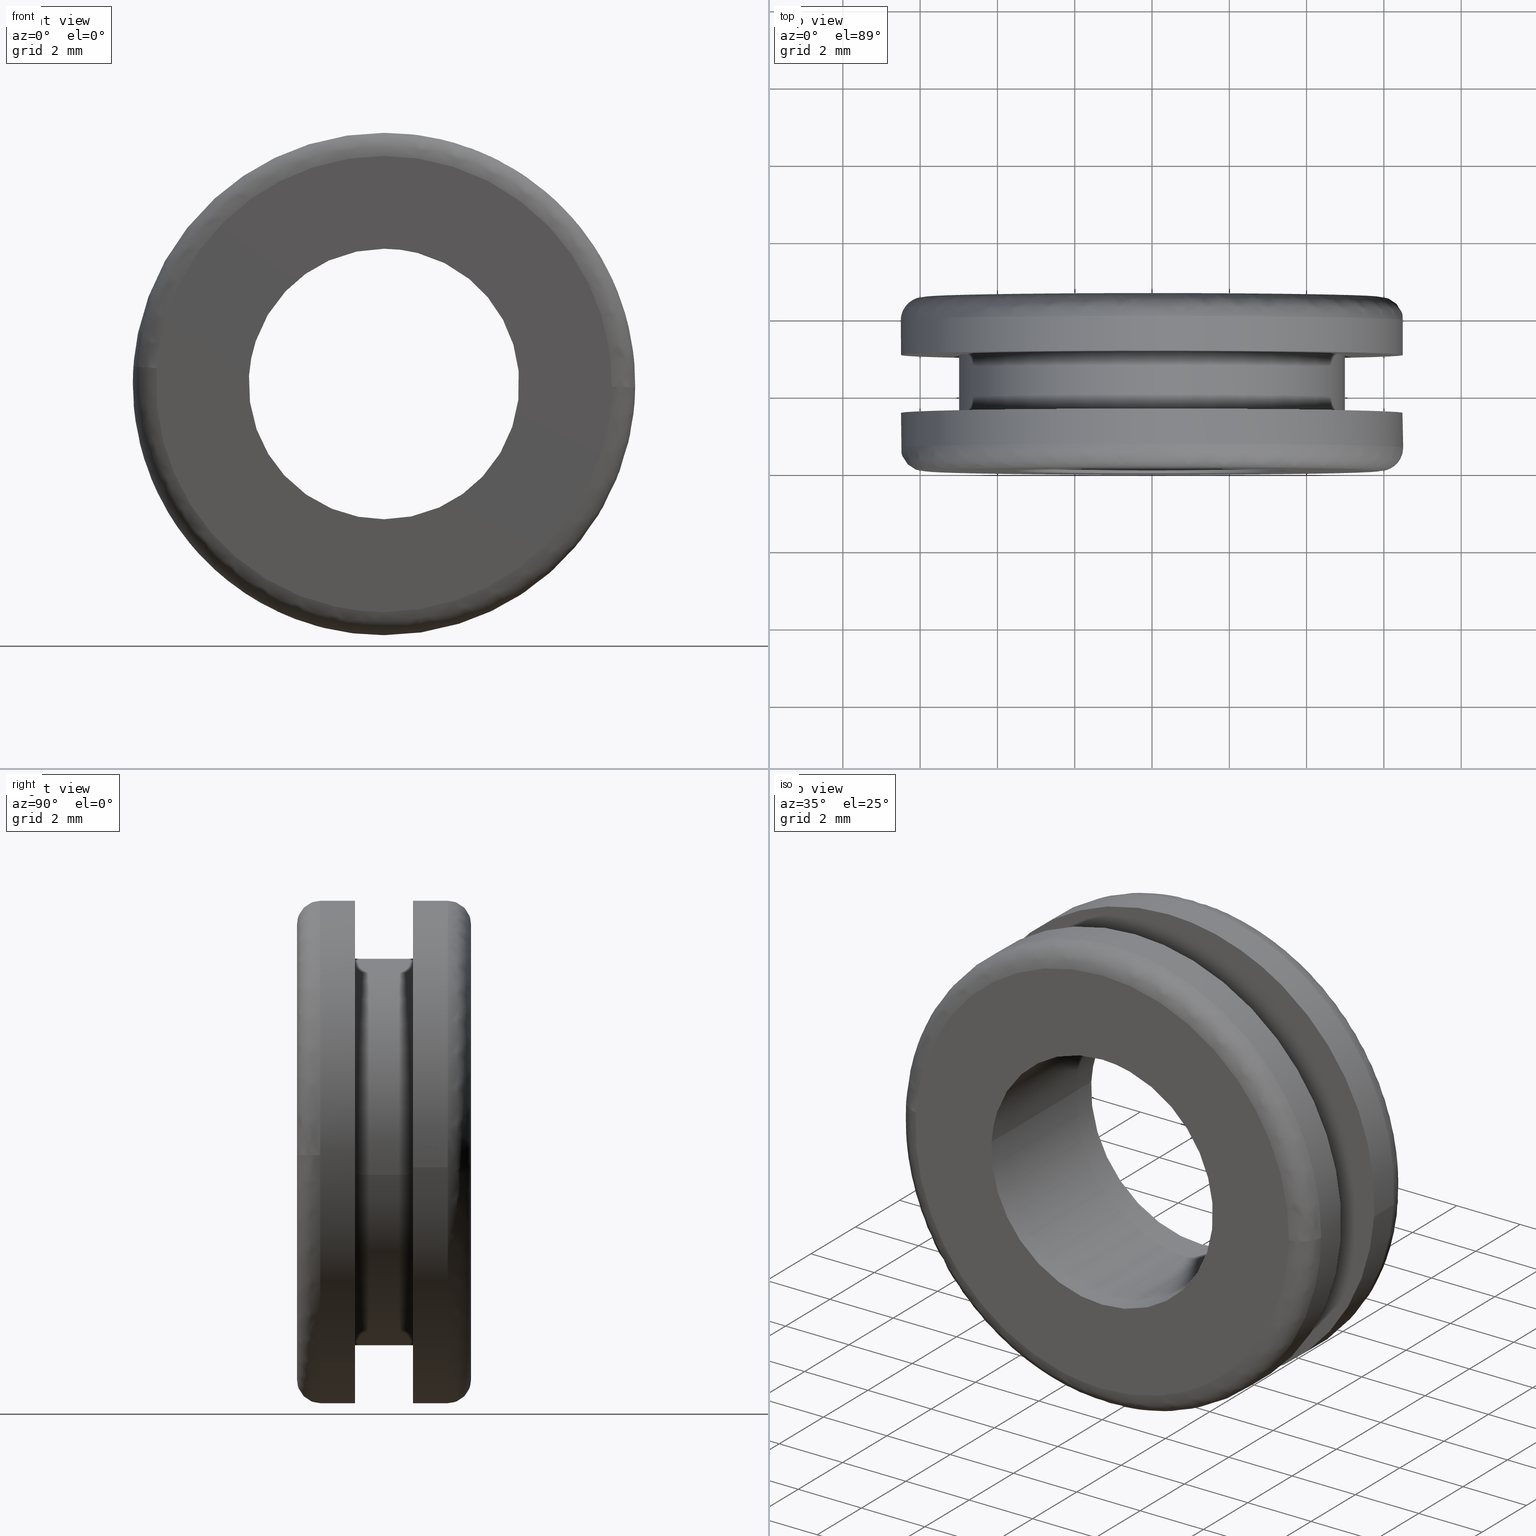
[diagram: canonical four-view strip — front | top / right | iso, engineering-drawing reading convention]
A machine part, canonical four-view strip (front | top / right | iso — engineering-drawing reading convention). The complete STEP part file that produces these views, byte-faithful:
ISO-10303-21;
HEADER;
/****************************************************************
 * Generated by software with PDE/Lib inside                    *
 * PDElib Version 4.4.1-0003, patched  Thursday August 19 11:58 *
 * International Technegroup Inc. (www.iti-oh.com)              *
 ****************************************************************/
FILE_DESCRIPTION((''),'2;1');
FILE_NAME('','2005-12-14T14:18:30',(''),(''),'','CADfix','');
FILE_SCHEMA(('AUTOMOTIVE_DESIGN'));
ENDSEC;
DATA;
#5=APPLICATION_CONTEXT('automotive design');
#6=APPLICATION_PROTOCOL_DEFINITION('Draft International Standard','automotive_design',1998,#5);
#7=PRODUCT_CONTEXT('None',#5,'mechanical');
#8=PRODUCT('grommet','','None',(#7));
#9=PRODUCT_RELATED_PRODUCT_CATEGORY('part','description',(#8));
#10=PRODUCT_DEFINITION_FORMATION('None','None',#8);
#11=PRODUCT_DEFINITION_CONTEXT('part definition',#5,'design');
#12=PRODUCT_DEFINITION('None','None',#10,#11);
#18=(NAMED_UNIT(*)PLANE_ANGLE_UNIT()SI_UNIT($,.RADIAN.));
#19=DIMENSIONAL_EXPONENTS(0.0,0.0,0.0,0.0,0.0,0.0,0.0);
#20=PLANE_ANGLE_MEASURE_WITH_UNIT(PLANE_ANGLE_MEASURE(0.017453292500000),#18);
#24=(CONVERSION_BASED_UNIT('DEGREE',#20)NAMED_UNIT(#19)PLANE_ANGLE_UNIT());
#28=(NAMED_UNIT(*)SI_UNIT($,.STERADIAN.)SOLID_ANGLE_UNIT());
#32=(LENGTH_UNIT()NAMED_UNIT(*)SI_UNIT(.MILLI.,.METRE.));
#34=UNCERTAINTY_MEASURE_WITH_UNIT(LENGTH_MEASURE(0.001000000000000),#32,'DISTANCE_ACCURACY_VALUE','');
#36=(GEOMETRIC_REPRESENTATION_CONTEXT(3)GLOBAL_UNCERTAINTY_ASSIGNED_CONTEXT((#34))GLOBAL_UNIT_ASSIGNED_CONTEXT((#24,#28,#32))REPRESENTATION_CONTEXT('None','None'));
#37=AXIS2_PLACEMENT_3D('',#38,#39,#40);
#38=CARTESIAN_POINT('',(0.0,0.0,0.0));
#39=DIRECTION('',(0.0,0.0,1.0));
#40=DIRECTION('',(1.0,0.0,0.0));
#41=ADVANCED_BREP_SHAPE_REPRESENTATION('',(#37,#1237),#36);
#42=PRODUCT_DEFINITION_SHAPE('','',#12);
#43=SHAPE_DEFINITION_REPRESENTATION(#42,#41);
#44=CARTESIAN_POINT('',(3.527737599937955,1.522500000001081,-5.459401746160834));
#45=CARTESIAN_POINT('',(3.843977972462719,1.522500000001081,-5.255054620844674));
#46=CARTESIAN_POINT('',(4.134508431805464,1.522500000001081,-5.015559792020178));
#47=CARTESIAN_POINT('',(9.150068223825642,1.522500000001081,-0.881051360214714));
#48=CARTESIAN_POINT('',(5.015559792020178,1.522500000001081,4.134508431805464));
#49=CARTESIAN_POINT('',(0.881051360214714,1.522500000001081,9.150068223825642));
#50=CARTESIAN_POINT('',(-4.134508431805464,1.522500000001081,5.015559792020178));
#51=CARTESIAN_POINT('',(-9.150068223825642,1.522500000001081,0.881051360214714));
#52=CARTESIAN_POINT('',(-5.015559792020178,1.522500000001081,-4.134508431805464));
#53=CARTESIAN_POINT('',(3.527737599937955,0.576937499954984,-5.459401746160834));
#54=CARTESIAN_POINT('',(3.843977972462719,0.576937499954984,-5.255054620844674));
#55=CARTESIAN_POINT('',(4.134508431805464,0.576937499954984,-5.015559792020178));
#56=CARTESIAN_POINT('',(9.150068223825642,0.576937499954984,-0.881051360214714));
#57=CARTESIAN_POINT('',(5.015559792020178,0.576937499954984,4.134508431805464));
#58=CARTESIAN_POINT('',(0.881051360214714,0.576937499954984,9.150068223825642));
#59=CARTESIAN_POINT('',(-4.134508431805464,0.576937499954984,5.015559792020178));
#60=CARTESIAN_POINT('',(-9.150068223825642,0.576937499954984,0.881051360214714));
#61=CARTESIAN_POINT('',(-5.015559792020178,0.576937499954984,-4.134508431805464));
#69=(BOUNDED_SURFACE()B_SPLINE_SURFACE(2,1,((#44,#53),(#45,#54),(#46,#55),(#47,#56),(#48,#57),(#49,#58),(#50,#59),(#51,#60),(#52,#61)),.UNSPECIFIED.,.F.,.F.,.U.)B_SPLINE_SURFACE_WITH_KNOTS((3,2,2,2,3),(2,2),(0.0,0.861564209736037,11.631116831436509,22.400669453136970,33.170222074837440),(0.0,1.0),.UNSPECIFIED.)GEOMETRIC_REPRESENTATION_ITEM()RATIONAL_B_SPLINE_SURFACE(((0.956886118190660,0.956886118190660),(0.976568542494924,0.976568542494924),(1.0,1.0),(0.707106781186548,0.707106781186548),(1.0,1.0),(0.707106781186548,0.707106781186548),(1.0,1.0),(0.707106781186548,0.707106781186548),(1.0,1.0)))REPRESENTATION_ITEM('')SURFACE());
#70=CARTESIAN_POINT('',(3.527737390288090,0.599999999992864,-5.459401881631385));
#71=VERTEX_POINT('',#70);
#72=CARTESIAN_POINT('',(6.499486787324761,0.599999999956108,-0.081679259245201));
#73=VERTEX_POINT('',#72);
#74=CARTESIAN_POINT('',(3.527737390288090,0.599999999992864,-5.459401881631385));
#75=CARTESIAN_POINT('',(6.455681202378268,0.599999999979934,-3.567433454250579));
#76=CARTESIAN_POINT('',(6.499486787324761,0.599999999956108,-0.081679259245201));
#84=(BOUNDED_CURVE()B_SPLINE_CURVE(2,(#74,#75,#76),.UNSPECIFIED.,.F.,.U.)B_SPLINE_CURVE_WITH_KNOTS((3,3),(0.092934731225705,0.247784295921544),.UNSPECIFIED.)CURVE()GEOMETRIC_REPRESENTATION_ITEM()RATIONAL_B_SPLINE_CURVE((0.863190106682966,0.816652486740027,0.994854295643588))REPRESENTATION_ITEM(''));
#85=EDGE_CURVE('',#71,#73,#84,.T.);
#86=ORIENTED_EDGE('',*,*,#85,.F.);
#87=CARTESIAN_POINT('',(3.527737407828749,1.499999999999984,-5.459401870297297));
#88=VERTEX_POINT('',#87);
#89=CARTESIAN_POINT('',(3.527737407828749,1.499999999999984,-5.459401870297297));
#90=CARTESIAN_POINT('',(3.527737390288090,0.599999999992864,-5.459401881631385));
#91=QUASI_UNIFORM_CURVE('',1,(#89,#90),.UNSPECIFIED.,.F.,.U.);
#92=EDGE_CURVE('',#88,#71,#91,.T.);
#93=ORIENTED_EDGE('',*,*,#92,.F.);
#94=CARTESIAN_POINT('',(0.0,1.499999999999984,6.500000000000000));
#95=VERTEX_POINT('',#94);
#96=CARTESIAN_POINT('',(3.527737407828749,1.499999999999984,-5.459401870297297));
#97=CARTESIAN_POINT('',(6.500000000000000,1.499999999999984,-3.538795662514091));
#98=CARTESIAN_POINT('',(6.500000000000000,1.499999999999984,-1.928755E-016));
#99=CARTESIAN_POINT('',(6.500000000000000,1.499999999999984,6.500000000000000));
#100=CARTESIAN_POINT('',(0.0,1.499999999999984,6.500000000000000));
#108=(BOUNDED_CURVE()B_SPLINE_CURVE(2,(#96,#97,#98,#99,#100),.UNSPECIFIED.,.F.,.U.)B_SPLINE_CURVE_WITH_KNOTS((3,2,3),(0.092934732206239,0.250000000000000,0.500000000000000),.UNSPECIFIED.)CURVE()GEOMETRIC_REPRESENTATION_ITEM()RATIONAL_B_SPLINE_CURVE((0.863190106093599,0.815986592608353,1.0,0.707106781186547,1.0))REPRESENTATION_ITEM(''));
#109=EDGE_CURVE('',#88,#95,#108,.T.);
#110=ORIENTED_EDGE('',*,*,#109,.T.);
#111=CARTESIAN_POINT('',(-5.015559880678618,1.499999999999984,-4.134508324254174));
#112=VERTEX_POINT('',#111);
#113=CARTESIAN_POINT('',(0.0,1.499999999999984,6.500000000000000));
#114=CARTESIAN_POINT('',(-6.500000000000000,1.499999999999984,6.500000000000000));
#115=CARTESIAN_POINT('',(-6.500000000000000,1.499999999999984,-1.928755E-016));
#116=CARTESIAN_POINT('',(-6.500000000000000,1.499999999999984,-2.333738305399645));
#117=CARTESIAN_POINT('',(-5.015559880678619,1.499999999999985,-4.134508324254174));
#125=(BOUNDED_CURVE()B_SPLINE_CURVE(2,(#113,#114,#115,#116,#117),.UNSPECIFIED.,.F.,.U.)B_SPLINE_CURVE_WITH_KNOTS((3,2,3),(0.500000000000000,0.750000000000000,0.860504619373458),.UNSPECIFIED.)CURVE()GEOMETRIC_REPRESENTATION_ITEM()RATIONAL_B_SPLINE_CURVE((1.0,0.707106781186547,1.0,0.870535785351809,0.855522720801075))REPRESENTATION_ITEM(''));
#126=EDGE_CURVE('',#95,#112,#125,.T.);
#127=ORIENTED_EDGE('',*,*,#126,.T.);
#128=CARTESIAN_POINT('',(-5.015560096692222,0.599999999999975,-4.134508062208667));
#129=VERTEX_POINT('',#128);
#130=CARTESIAN_POINT('',(-5.015559880678618,1.499999999999984,-4.134508324254174));
#131=CARTESIAN_POINT('',(-5.015560096692222,0.599999999999975,-4.134508062208667));
#132=QUASI_UNIFORM_CURVE('',1,(#130,#131),.UNSPECIFIED.,.F.,.U.);
#133=EDGE_CURVE('',#112,#129,#132,.T.);
#134=ORIENTED_EDGE('',*,*,#133,.T.);
#135=CARTESIAN_POINT('',(-6.484176879962625,0.599999999956112,0.453266135243000));
#136=VERTEX_POINT('',#135);
#137=CARTESIAN_POINT('',(-6.484176879962625,0.599999999956112,0.453266135243000));
#138=CARTESIAN_POINT('',(-6.500000000000000,0.599999999999979,0.226909253188261));
#139=CARTESIAN_POINT('',(-6.500000000000000,0.599999999999979,-1.928755E-016));
#140=CARTESIAN_POINT('',(-6.500000000000001,0.599999999999979,-2.333737922020143));
#141=CARTESIAN_POINT('',(-5.015560096692223,0.599999999999975,-4.134508062208667));
#149=(BOUNDED_CURVE()B_SPLINE_CURVE(2,(#137,#138,#139,#140,#141),.UNSPECIFIED.,.F.,.U.)B_SPLINE_CURVE_WITH_KNOTS((3,2,3),(0.737833686534995,0.750000000000000,0.860504603570303),.UNSPECIFIED.)CURVE()GEOMETRIC_REPRESENTATION_ITEM()RATIONAL_B_SPLINE_CURVE((0.972879876386772,0.985746277152565,1.0,0.870535803866357,0.855522725095084))REPRESENTATION_ITEM(''));
#150=EDGE_CURVE('',#136,#129,#149,.T.);
#151=ORIENTED_EDGE('',*,*,#150,.F.);
#152=CARTESIAN_POINT('',(0.0,0.599999999999979,6.500000000000000));
#153=VERTEX_POINT('',#152);
#154=CARTESIAN_POINT('',(0.0,0.599999999999979,6.500000000000000));
#155=CARTESIAN_POINT('',(-6.061489507228137,0.599999999999979,6.499999999999999));
#156=CARTESIAN_POINT('',(-6.484176879962625,0.599999999956112,0.453266135243000));
#164=(BOUNDED_CURVE()B_SPLINE_CURVE(2,(#154,#155,#156),.UNSPECIFIED.,.F.,.U.)B_SPLINE_CURVE_WITH_KNOTS((3,3),(0.500000000000000,0.737833686534996),.UNSPECIFIED.)CURVE()GEOMETRIC_REPRESENTATION_ITEM()RATIONAL_B_SPLINE_CURVE((1.0,0.721360504033981,0.972879876386774))REPRESENTATION_ITEM(''));
#165=EDGE_CURVE('',#153,#136,#164,.T.);
#166=ORIENTED_EDGE('',*,*,#165,.F.);
#167=CARTESIAN_POINT('',(6.499486787324761,0.599999999956108,-0.081679259245201));
#168=CARTESIAN_POINT('',(6.500000000000000,0.599999999999979,-0.040841241950693));
#169=CARTESIAN_POINT('',(6.500000000000000,0.599999999999979,-1.928755E-016));
#170=CARTESIAN_POINT('',(6.500000000000000,0.599999999999979,6.500000000000000));
#171=CARTESIAN_POINT('',(0.0,0.599999999999979,6.500000000000000));
#179=(BOUNDED_CURVE()B_SPLINE_CURVE(2,(#167,#168,#169,#170,#171),.UNSPECIFIED.,.F.,.U.)B_SPLINE_CURVE_WITH_KNOTS((3,2,3),(0.247784295921544,0.250000000000000,0.500000000000000),.UNSPECIFIED.)CURVE()GEOMETRIC_REPRESENTATION_ITEM()RATIONAL_B_SPLINE_CURVE((0.994854295643588,0.997404141202091,1.0,0.707106781186547,1.0))REPRESENTATION_ITEM(''));
#180=EDGE_CURVE('',#73,#153,#179,.T.);
#181=ORIENTED_EDGE('',*,*,#180,.F.);
#182=EDGE_LOOP('',(#86,#93,#110,#127,#134,#151,#166,#181));
#183=FACE_OUTER_BOUND('',#182,.T.);
#184=ADVANCED_FACE('',(#183),#69,.T.);
#185=CARTESIAN_POINT('',(-5.015559792020178,1.522500000001081,-4.134508431805464));
#186=CARTESIAN_POINT('',(-1.333814346498391,1.522500000001081,-8.600822801600744));
#187=CARTESIAN_POINT('',(3.527737599937955,1.522500000001081,-5.459401746160834));
#188=CARTESIAN_POINT('',(-5.015559792020178,0.576937499954984,-4.134508431805464));
#189=CARTESIAN_POINT('',(-1.333814346498391,0.576937499954984,-8.600822801600744));
#190=CARTESIAN_POINT('',(3.527737599937955,0.576937499954984,-5.459401746160834));
#198=(BOUNDED_SURFACE()B_SPLINE_SURFACE(2,1,((#185,#188),(#186,#189),(#187,#190)),.UNSPECIFIED.,.F.,.F.,.U.)B_SPLINE_SURFACE_WITH_KNOTS((3,3),(2,2),(0.0,9.897120716233113),(0.0,1.0),.UNSPECIFIED.)GEOMETRIC_REPRESENTATION_ITEM()RATIONAL_B_SPLINE_SURFACE(((1.0,1.0),(0.730538238691624,0.730538238691624),(0.956886118190660,0.956886118190660)))REPRESENTATION_ITEM('')SURFACE());
#199=CARTESIAN_POINT('',(0.0,0.599999999999979,-6.500000000000000));
#200=VERTEX_POINT('',#199);
#201=CARTESIAN_POINT('',(0.0,0.599999999999979,-6.500000000000000));
#202=CARTESIAN_POINT('',(1.917344332213022,0.599999999999979,-6.499999999999999));
#203=CARTESIAN_POINT('',(3.527737390288090,0.599999999992864,-5.459401881631385));
#211=(BOUNDED_CURVE()B_SPLINE_CURVE(2,(#201,#202,#203),.UNSPECIFIED.,.F.,.U.)B_SPLINE_CURVE_WITH_KNOTS((3,3),(0.0,0.092934731225705),.UNSPECIFIED.)CURVE()GEOMETRIC_REPRESENTATION_ITEM()RATIONAL_B_SPLINE_CURVE((1.0,0.891120189726961,0.863190106682967))REPRESENTATION_ITEM(''));
#212=EDGE_CURVE('',#200,#71,#211,.T.);
#213=ORIENTED_EDGE('',*,*,#212,.F.);
#214=CARTESIAN_POINT('',(-5.015560096692223,0.599999999999975,-4.134508062208667));
#215=CARTESIAN_POINT('',(-3.065599607541474,0.599999999999979,-6.500000000000000));
#216=CARTESIAN_POINT('',(0.0,0.599999999999979,-6.500000000000000));
#224=(BOUNDED_CURVE()B_SPLINE_CURVE(2,(#214,#215,#216),.UNSPECIFIED.,.F.,.U.)B_SPLINE_CURVE_WITH_KNOTS((3,3),(0.860504603570303,1.0),.UNSPECIFIED.)CURVE()GEOMETRIC_REPRESENTATION_ITEM()RATIONAL_B_SPLINE_CURVE((0.855522725095084,0.836570977320189,1.0))REPRESENTATION_ITEM(''));
#225=EDGE_CURVE('',#129,#200,#224,.T.);
#226=ORIENTED_EDGE('',*,*,#225,.F.);
#227=ORIENTED_EDGE('',*,*,#133,.F.);
#228=CARTESIAN_POINT('',(0.0,1.499999999999984,-6.500000000000000));
#229=VERTEX_POINT('',#228);
#230=CARTESIAN_POINT('',(-5.015559880678619,1.499999999999985,-4.134508324254174));
#231=CARTESIAN_POINT('',(-3.065599192399563,1.499999999999984,-6.500000000000000));
#232=CARTESIAN_POINT('',(0.0,1.499999999999984,-6.500000000000000));
#240=(BOUNDED_CURVE()B_SPLINE_CURVE(2,(#230,#231,#232),.UNSPECIFIED.,.F.,.U.)B_SPLINE_CURVE_WITH_KNOTS((3,3),(0.860504619373459,1.0),.UNSPECIFIED.)CURVE()GEOMETRIC_REPRESENTATION_ITEM()RATIONAL_B_SPLINE_CURVE((0.855522720801075,0.836570995834738,1.0))REPRESENTATION_ITEM(''));
#241=EDGE_CURVE('',#112,#229,#240,.T.);
#242=ORIENTED_EDGE('',*,*,#241,.T.);
#243=CARTESIAN_POINT('',(0.0,1.499999999999984,-6.500000000000000));
#244=CARTESIAN_POINT('',(1.917344354914185,1.499999999999984,-6.500000000000000));
#245=CARTESIAN_POINT('',(3.527737407828749,1.499999999999984,-5.459401870297297));
#253=(BOUNDED_CURVE()B_SPLINE_CURVE(2,(#243,#244,#245),.UNSPECIFIED.,.F.,.U.)B_SPLINE_CURVE_WITH_KNOTS((3,3),(0.0,0.092934732206239),.UNSPECIFIED.)CURVE()GEOMETRIC_REPRESENTATION_ITEM()RATIONAL_B_SPLINE_CURVE((1.0,0.891120188578194,0.863190106093599))REPRESENTATION_ITEM(''));
#254=EDGE_CURVE('',#229,#88,#253,.T.);
#255=ORIENTED_EDGE('',*,*,#254,.T.);
#256=ORIENTED_EDGE('',*,*,#92,.T.);
#257=EDGE_LOOP('',(#213,#226,#227,#242,#255,#256));
#258=FACE_OUTER_BOUND('',#257,.T.);
#259=ADVANCED_FACE('',(#258),#198,.T.);
#260=CARTESIAN_POINT('',(4.965047631818332,3.037500000000002,-0.590171173283793));
#261=CARTESIAN_POINT('',(4.981938077243028,3.037500000000002,-0.448073643189889));
#262=CARTESIAN_POINT('',(4.990673992109334,3.037500000000001,-0.305242697674285));
#263=CARTESIAN_POINT('',(5.295916689783620,3.037500000000001,4.685431294435048));
#264=CARTESIAN_POINT('',(0.305242697674285,3.037500000000001,4.990673992109334));
#265=CARTESIAN_POINT('',(-4.685431294435048,3.037500000000001,5.295916689783618));
#266=CARTESIAN_POINT('',(-4.990673992109334,3.037500000000001,0.305242697674285));
#267=CARTESIAN_POINT('',(4.965047631818332,1.461562499999983,-0.590171173283793));
#268=CARTESIAN_POINT('',(4.981938077243028,1.461562499999983,-0.448073643189889));
#269=CARTESIAN_POINT('',(4.990673992109334,1.461562499999983,-0.305242697674285));
#270=CARTESIAN_POINT('',(5.295916689783620,1.461562499999984,4.685431294435048));
#271=CARTESIAN_POINT('',(0.305242697674285,1.461562499999983,4.990673992109334));
#272=CARTESIAN_POINT('',(-4.685431294435048,1.461562499999984,5.295916689783618));
#273=CARTESIAN_POINT('',(-4.990673992109334,1.461562499999983,0.305242697674285));
#281=(BOUNDED_SURFACE()B_SPLINE_SURFACE(2,1,((#260,#267),(#261,#268),(#262,#269),(#263,#270),(#264,#271),(#265,#272),(#266,#273)),.UNSPECIFIED.,.F.,.F.,.U.)B_SPLINE_SURFACE_WITH_KNOTS((3,2,2,3),(2,2),(0.0,0.331370849898476,8.615642097360375,16.899913344822270),(0.0,1.0),.UNSPECIFIED.)GEOMETRIC_REPRESENTATION_ITEM()RATIONAL_B_SPLINE_SURFACE(((0.977505800795127,0.977505800795127),(0.988284271247462,0.988284271247462),(1.0,1.0),(0.707106781186548,0.707106781186548),(1.0,1.0),(0.707106781186548,0.707106781186548),(1.0,1.0)))REPRESENTATION_ITEM('')SURFACE());
#282=CARTESIAN_POINT('',(4.965048226197853,1.500000000000020,-0.590166172788802));
#283=VERTEX_POINT('',#282);
#284=CARTESIAN_POINT('',(0.0,1.499999999999984,5.0));
#285=VERTEX_POINT('',#284);
#286=CARTESIAN_POINT('',(4.965048226197853,1.500000000000020,-0.590166172788802));
#287=CARTESIAN_POINT('',(4.999999999999999,1.499999999999984,-0.296118071580136));
#288=CARTESIAN_POINT('',(5.0,1.499999999999984,-1.928755E-016));
#289=CARTESIAN_POINT('',(5.000000000000001,1.499999999999984,5.000000000000001));
#290=CARTESIAN_POINT('',(0.0,1.499999999999984,5.0));
#298=(BOUNDED_CURVE()B_SPLINE_CURVE(2,(#286,#287,#288,#289,#290),.UNSPECIFIED.,.F.,.U.)B_SPLINE_CURVE_WITH_KNOTS((3,2,3),(0.229562643725482,0.250000000000000,0.500000000000000),.UNSPECIFIED.)CURVE()GEOMETRIC_REPRESENTATION_ITEM()RATIONAL_B_SPLINE_CURVE((0.956027087806405,0.976056147746877,1.0,0.707106781186548,1.0))REPRESENTATION_ITEM(''));
#299=EDGE_CURVE('',#283,#285,#298,.T.);
#300=ORIENTED_EDGE('',*,*,#299,.F.);
#301=CARTESIAN_POINT('',(4.965048218866258,3.0,-0.590166234469792));
#302=VERTEX_POINT('',#301);
#303=CARTESIAN_POINT('',(4.965048218866258,3.0,-0.590166234469792));
#304=CARTESIAN_POINT('',(4.965048226197853,1.500000000000020,-0.590166172788802));
#305=QUASI_UNIFORM_CURVE('',1,(#303,#304),.UNSPECIFIED.,.F.,.U.);
#306=EDGE_CURVE('',#302,#283,#305,.T.);
#307=ORIENTED_EDGE('',*,*,#306,.F.);
#308=CARTESIAN_POINT('',(0.0,3.0,5.0));
#309=VERTEX_POINT('',#308);
#310=CARTESIAN_POINT('',(4.965048218866258,3.000000000000000,-0.590166234469792));
#311=CARTESIAN_POINT('',(5.0,3.000000000000001,-0.296118102746663));
#312=CARTESIAN_POINT('',(5.0,3.0,-1.928755E-016));
#313=CARTESIAN_POINT('',(5.000000000000001,3.0,5.000000000000001));
#314=CARTESIAN_POINT('',(0.0,3.0,5.0));
#322=(BOUNDED_CURVE()B_SPLINE_CURVE(2,(#310,#311,#312,#313,#314),.UNSPECIFIED.,.F.,.U.)B_SPLINE_CURVE_WITH_KNOTS((3,2,3),(0.229562641625948,0.250000000000000,0.500000000000000),.UNSPECIFIED.)CURVE()GEOMETRIC_REPRESENTATION_ITEM()RATIONAL_B_SPLINE_CURVE((0.956027083691225,0.976056145287119,1.0,0.707106781186548,1.0))REPRESENTATION_ITEM(''));
#323=EDGE_CURVE('',#302,#309,#322,.T.);
#324=ORIENTED_EDGE('',*,*,#323,.T.);
#325=CARTESIAN_POINT('',(-4.990674085489411,3.0,0.305241170915862));
#326=VERTEX_POINT('',#325);
#327=CARTESIAN_POINT('',(0.0,3.0,5.0));
#328=CARTESIAN_POINT('',(-4.703531776132310,2.999999999999999,4.999999999999998));
#329=CARTESIAN_POINT('',(-4.990674085489411,3.0,0.305241170915862));
#337=(BOUNDED_CURVE()B_SPLINE_CURVE(2,(#327,#328,#329),.UNSPECIFIED.,.F.,.U.)B_SPLINE_CURVE_WITH_KNOTS((3,3),(0.500000000000000,0.739333015027880),.UNSPECIFIED.)CURVE()GEOMETRIC_REPRESENTATION_ITEM()RATIONAL_B_SPLINE_CURVE((1.0,0.719603931440624,0.976072154803484))REPRESENTATION_ITEM(''));
#338=EDGE_CURVE('',#309,#326,#337,.T.);
#339=ORIENTED_EDGE('',*,*,#338,.T.);
#340=CARTESIAN_POINT('',(-4.990674086654666,1.499999999999996,0.305241151863910));
#341=VERTEX_POINT('',#340);
#342=CARTESIAN_POINT('',(-4.990674085489411,3.0,0.305241170915862));
#343=CARTESIAN_POINT('',(-4.990674086654666,1.499999999999996,0.305241151863910));
#344=QUASI_UNIFORM_CURVE('',1,(#342,#343),.UNSPECIFIED.,.F.,.U.);
#345=EDGE_CURVE('',#326,#341,#344,.T.);
#346=ORIENTED_EDGE('',*,*,#345,.T.);
#347=CARTESIAN_POINT('',(0.0,1.499999999999984,5.0));
#348=CARTESIAN_POINT('',(-4.703531794121649,1.499999999999984,4.999999999999999));
#349=CARTESIAN_POINT('',(-4.990674086654666,1.499999999999996,0.305241151863910));
#357=(BOUNDED_CURVE()B_SPLINE_CURVE(2,(#347,#348,#349),.UNSPECIFIED.,.F.,.U.)B_SPLINE_CURVE_WITH_KNOTS((3,3),(0.500000000000000,0.739333015686579),.UNSPECIFIED.)CURVE()GEOMETRIC_REPRESENTATION_ITEM()RATIONAL_B_SPLINE_CURVE((1.0,0.719603930668910,0.976072156215203))REPRESENTATION_ITEM(''));
#358=EDGE_CURVE('',#285,#341,#357,.T.);
#359=ORIENTED_EDGE('',*,*,#358,.F.);
#360=EDGE_LOOP('',(#300,#307,#324,#339,#346,#359));
#361=FACE_OUTER_BOUND('',#360,.T.);
#362=ADVANCED_FACE('',(#361),#281,.T.);
#363=CARTESIAN_POINT('',(-4.990673992109334,3.037500000000001,0.305242697674285));
#364=CARTESIAN_POINT('',(-5.295916689783620,3.037500000000001,-4.685431294435050));
#365=CARTESIAN_POINT('',(-0.305242697674285,3.037500000000001,-4.990673992109334));
#366=CARTESIAN_POINT('',(4.407717454197504,3.037500000000001,-5.278930983662638));
#367=CARTESIAN_POINT('',(4.965047631818332,3.037500000000002,-0.590171173283793));
#368=CARTESIAN_POINT('',(-4.990673992109334,1.461562499999983,0.305242697674285));
#369=CARTESIAN_POINT('',(-5.295916689783620,1.461562499999984,-4.685431294435050));
#370=CARTESIAN_POINT('',(-0.305242697674285,1.461562499999983,-4.990673992109334));
#371=CARTESIAN_POINT('',(4.407717454197504,1.461562499999983,-5.278930983662638));
#372=CARTESIAN_POINT('',(4.965047631818332,1.461562499999983,-0.590171173283793));
#380=(BOUNDED_SURFACE()B_SPLINE_SURFACE(2,1,((#363,#368),(#364,#369),(#365,#370),(#366,#371),(#367,#372)),.UNSPECIFIED.,.F.,.F.,.U.)B_SPLINE_SURFACE_WITH_KNOTS((3,2,3),(2,2),(0.0,8.284271247461899,16.237171645025320),(0.0,1.0),.UNSPECIFIED.)GEOMETRIC_REPRESENTATION_ITEM()RATIONAL_B_SPLINE_SURFACE(((1.0,1.0),(0.707106781186548,0.707106781186548),(1.0,1.0),(0.718822509939086,0.718822509939086),(0.977505800795127,0.977505800795127)))REPRESENTATION_ITEM('')SURFACE());
#381=CARTESIAN_POINT('',(0.0,1.499999999999984,-5.0));
#382=VERTEX_POINT('',#381);
#383=CARTESIAN_POINT('',(0.0,1.499999999999984,-5.0));
#384=CARTESIAN_POINT('',(4.440877133821552,1.499999999999984,-4.999999999999999));
#385=CARTESIAN_POINT('',(4.965048226197853,1.500000000000020,-0.590166172788802));
#393=(BOUNDED_CURVE()B_SPLINE_CURVE(2,(#383,#384,#385),.UNSPECIFIED.,.F.,.U.)B_SPLINE_CURVE_WITH_KNOTS((3,3),(0.0,0.229562643725482),.UNSPECIFIED.)CURVE()GEOMETRIC_REPRESENTATION_ITEM()RATIONAL_B_SPLINE_CURVE((1.0,0.731050633439671,0.956027087806405))REPRESENTATION_ITEM(''));
#394=EDGE_CURVE('',#382,#283,#393,.T.);
#395=ORIENTED_EDGE('',*,*,#394,.F.);
#396=CARTESIAN_POINT('',(-4.990674086654666,1.499999999999996,0.305241151863910));
#397=CARTESIAN_POINT('',(-5.0,1.499999999999984,0.152763041420625));
#398=CARTESIAN_POINT('',(-5.0,1.499999999999984,-1.928755E-016));
#399=CARTESIAN_POINT('',(-5.000000000000001,1.499999999999984,-5.000000000000001));
#400=CARTESIAN_POINT('',(0.0,1.499999999999984,-5.0));
#408=(BOUNDED_CURVE()B_SPLINE_CURVE(2,(#396,#397,#398,#399,#400),.UNSPECIFIED.,.F.,.U.)B_SPLINE_CURVE_WITH_KNOTS((3,2,3),(0.739333015686579,0.750000000000000,1.0),.UNSPECIFIED.)CURVE()GEOMETRIC_REPRESENTATION_ITEM()RATIONAL_B_SPLINE_CURVE((0.976072156215203,0.987502850517638,1.0,0.707106781186548,1.0))REPRESENTATION_ITEM(''));
#409=EDGE_CURVE('',#341,#382,#408,.T.);
#410=ORIENTED_EDGE('',*,*,#409,.F.);
#411=ORIENTED_EDGE('',*,*,#345,.F.);
#412=CARTESIAN_POINT('',(0.0,3.0,-5.0));
#413=VERTEX_POINT('',#412);
#414=CARTESIAN_POINT('',(-4.990674085489411,3.0,0.305241170915862));
#415=CARTESIAN_POINT('',(-5.0,3.000000000000000,0.152763050973311));
#416=CARTESIAN_POINT('',(-5.0,3.0,-1.928755E-016));
#417=CARTESIAN_POINT('',(-5.000000000000001,3.0,-5.000000000000001));
#418=CARTESIAN_POINT('',(0.0,3.0,-5.0));
#426=(BOUNDED_CURVE()B_SPLINE_CURVE(2,(#414,#415,#416,#417,#418),.UNSPECIFIED.,.F.,.U.)B_SPLINE_CURVE_WITH_KNOTS((3,2,3),(0.739333015027880,0.750000000000000,1.0),.UNSPECIFIED.)CURVE()GEOMETRIC_REPRESENTATION_ITEM()RATIONAL_B_SPLINE_CURVE((0.976072154803484,0.987502849745924,1.0,0.707106781186548,1.0))REPRESENTATION_ITEM(''));
#427=EDGE_CURVE('',#326,#413,#426,.T.);
#428=ORIENTED_EDGE('',*,*,#427,.T.);
#429=CARTESIAN_POINT('',(0.0,3.0,-5.0));
#430=CARTESIAN_POINT('',(4.440877078264001,3.0,-4.999999999999999));
#431=CARTESIAN_POINT('',(4.965048218866258,3.000000000000000,-0.590166234469792));
#439=(BOUNDED_CURVE()B_SPLINE_CURVE(2,(#429,#430,#431),.UNSPECIFIED.,.F.,.U.)B_SPLINE_CURVE_WITH_KNOTS((3,3),(0.0,0.229562641625948),.UNSPECIFIED.)CURVE()GEOMETRIC_REPRESENTATION_ITEM()RATIONAL_B_SPLINE_CURVE((1.0,0.731050635899429,0.956027083691225))REPRESENTATION_ITEM(''));
#440=EDGE_CURVE('',#413,#302,#439,.T.);
#441=ORIENTED_EDGE('',*,*,#440,.T.);
#442=ORIENTED_EDGE('',*,*,#306,.T.);
#443=EDGE_LOOP('',(#395,#410,#411,#428,#441,#442));
#444=FACE_OUTER_BOUND('',#443,.T.);
#445=ADVANCED_FACE('',(#444),#380,.T.);
#446=CARTESIAN_POINT('',(2.285516833545215,3.922500000020496,6.084933262048272));
#447=CARTESIAN_POINT('',(1.371431436150150,3.922500000020496,6.428266125873479));
#448=CARTESIAN_POINT('',(0.396815506976567,3.922500000020496,6.487876189742133));
#449=CARTESIAN_POINT('',(-6.091060682765567,3.922500000020496,6.884691696718701));
#450=CARTESIAN_POINT('',(-6.487876189742133,3.922500000020496,0.396815506976566));
#451=CARTESIAN_POINT('',(-6.884691696718701,3.922500000020496,-6.091060682765567));
#452=CARTESIAN_POINT('',(-0.396815506976567,3.922500000020496,-6.487876189742133));
#453=CARTESIAN_POINT('',(6.091060682765567,3.922500000020496,-6.884691696718701));
#454=CARTESIAN_POINT('',(6.487876189742133,3.922500000020496,-0.396815506976567));
#455=CARTESIAN_POINT('',(2.285516833545215,2.976937499999487,6.084933262048272));
#456=CARTESIAN_POINT('',(1.371431436150150,2.976937499999487,6.428266125873479));
#457=CARTESIAN_POINT('',(0.396815506976567,2.976937499999487,6.487876189742133));
#458=CARTESIAN_POINT('',(-6.091060682765567,2.976937499999487,6.884691696718701));
#459=CARTESIAN_POINT('',(-6.487876189742133,2.976937499999487,0.396815506976566));
#460=CARTESIAN_POINT('',(-6.884691696718701,2.976937499999487,-6.091060682765567));
#461=CARTESIAN_POINT('',(-0.396815506976567,2.976937499999487,-6.487876189742133));
#462=CARTESIAN_POINT('',(6.091060682765567,2.976937499999487,-6.884691696718701));
#463=CARTESIAN_POINT('',(6.487876189742133,2.976937499999487,-0.396815506976567));
#471=(BOUNDED_SURFACE()B_SPLINE_SURFACE(2,1,((#446,#455),(#447,#456),(#448,#457),(#449,#458),(#450,#459),(#451,#460),(#452,#461),(#453,#462),(#454,#463)),.UNSPECIFIED.,.F.,.F.,.U.)B_SPLINE_SURFACE_WITH_KNOTS((3,2,2,2,3),(2,2),(0.0,2.153910524340094,12.923463146040559,23.693015767741031,34.462568389441500),(0.0,1.0),.UNSPECIFIED.)GEOMETRIC_REPRESENTATION_ITEM()RATIONAL_B_SPLINE_SURFACE(((0.906274169979695,0.906274169979695),(0.941421356237309,0.941421356237309),(1.0,1.0),(0.707106781186548,0.707106781186548),(1.0,1.0),(0.707106781186548,0.707106781186548),(1.0,1.0),(0.707106781186548,0.707106781186548),(1.0,1.0)))REPRESENTATION_ITEM('')SURFACE());
#472=CARTESIAN_POINT('',(2.285515381072492,2.999999999999971,6.084933807600427));
#473=VERTEX_POINT('',#472);
#474=CARTESIAN_POINT('',(0.0,3.0,6.500000000000000));
#475=VERTEX_POINT('',#474);
#476=CARTESIAN_POINT('',(2.285515381072492,2.999999999999971,6.084933807600427));
#477=CARTESIAN_POINT('',(1.180447208073476,3.000000000000000,6.500000000000000));
#478=CARTESIAN_POINT('',(0.0,3.0,6.500000000000000));
#486=(BOUNDED_CURVE()B_SPLINE_CURVE(2,(#476,#477,#478),.UNSPECIFIED.,.F.,.U.)B_SPLINE_CURVE_WITH_KNOTS((3,3),(0.440284208601526,0.500000000000000),.UNSPECIFIED.)CURVE()GEOMETRIC_REPRESENTATION_ITEM()RATIONAL_B_SPLINE_CURVE((0.893499600774832,0.930038598573233,1.0))REPRESENTATION_ITEM(''));
#487=EDGE_CURVE('',#473,#475,#486,.T.);
#488=ORIENTED_EDGE('',*,*,#487,.F.);
#489=CARTESIAN_POINT('',(2.285515399003096,3.900000000000000,6.084933800865655));
#490=VERTEX_POINT('',#489);
#491=CARTESIAN_POINT('',(2.285515399003096,3.900000000000000,6.084933800865655));
#492=CARTESIAN_POINT('',(2.285515381072492,2.999999999999971,6.084933807600427));
#493=QUASI_UNIFORM_CURVE('',1,(#491,#492),.UNSPECIFIED.,.F.,.U.);
#494=EDGE_CURVE('',#490,#473,#493,.T.);
#495=ORIENTED_EDGE('',*,*,#494,.F.);
#496=CARTESIAN_POINT('',(0.0,3.900000000000000,6.500000000000000));
#497=VERTEX_POINT('',#496);
#498=CARTESIAN_POINT('',(2.285515399003096,3.900000000000000,6.084933800865655));
#499=CARTESIAN_POINT('',(1.180447217966175,3.899999999999999,6.500000000000000));
#500=CARTESIAN_POINT('',(0.0,3.900000000000000,6.500000000000000));
#508=(BOUNDED_CURVE()B_SPLINE_CURVE(2,(#498,#499,#500),.UNSPECIFIED.,.F.,.U.)B_SPLINE_CURVE_WITH_KNOTS((3,3),(0.440284208136092,0.500000000000000),.UNSPECIFIED.)CURVE()GEOMETRIC_REPRESENTATION_ITEM()RATIONAL_B_SPLINE_CURVE((0.893499600205250,0.930038598027943,1.0))REPRESENTATION_ITEM(''));
#509=EDGE_CURVE('',#490,#497,#508,.T.);
#510=ORIENTED_EDGE('',*,*,#509,.T.);
#511=CARTESIAN_POINT('',(-6.499999999999998,3.900000000019996,0.0));
#512=VERTEX_POINT('',#511);
#513=CARTESIAN_POINT('',(0.0,3.900000000000000,6.500000000000000));
#514=CARTESIAN_POINT('',(-6.499999999999969,3.900000000000000,6.500000000000001));
#515=CARTESIAN_POINT('',(-6.499999999999998,3.900000000019996,0.0));
#523=(BOUNDED_CURVE()B_SPLINE_CURVE(2,(#513,#514,#515),.UNSPECIFIED.,.F.,.U.)B_SPLINE_CURVE_WITH_KNOTS((3,3),(0.500000000000000,0.749999999999999),.UNSPECIFIED.)CURVE()GEOMETRIC_REPRESENTATION_ITEM()RATIONAL_B_SPLINE_CURVE((1.0,0.707106781186548,0.999999999999998))REPRESENTATION_ITEM(''));
#524=EDGE_CURVE('',#497,#512,#523,.T.);
#525=ORIENTED_EDGE('',*,*,#524,.T.);
#526=CARTESIAN_POINT('',(-2.296462783290793,3.900000000019682,-6.080810693070479));
#527=VERTEX_POINT('',#526);
#528=CARTESIAN_POINT('',(-6.499999999999998,3.900000000019996,0.0));
#529=CARTESIAN_POINT('',(-6.500000000000002,3.899999999999999,-4.493314014814774));
#530=CARTESIAN_POINT('',(-2.296462783290793,3.900000000019683,-6.080810693070479));
#538=(BOUNDED_CURVE()B_SPLINE_CURVE(2,(#528,#529,#530),.UNSPECIFIED.,.F.,.U.)B_SPLINE_CURVE_WITH_KNOTS((3,3),(0.750000000000000,0.939999999999992),.UNSPECIFIED.)CURVE()GEOMETRIC_REPRESENTATION_ITEM()RATIONAL_B_SPLINE_CURVE((1.0,0.777401153701785,0.893152553776843))REPRESENTATION_ITEM(''));
#539=EDGE_CURVE('',#512,#527,#538,.T.);
#540=ORIENTED_EDGE('',*,*,#539,.T.);
#541=CARTESIAN_POINT('',(0.0,3.900000000000000,-6.500000000000000));
#542=VERTEX_POINT('',#541);
#543=CARTESIAN_POINT('',(-2.296462783290794,3.900000000019683,-6.080810693070479));
#544=CARTESIAN_POINT('',(-1.186490159939611,3.900000000000000,-6.500000000000000));
#545=CARTESIAN_POINT('',(0.0,3.900000000000000,-6.500000000000000));
#553=(BOUNDED_CURVE()B_SPLINE_CURVE(2,(#543,#544,#545),.UNSPECIFIED.,.F.,.U.)B_SPLINE_CURVE_WITH_KNOTS((3,3),(0.939999999999993,1.0),.UNSPECIFIED.)CURVE()GEOMETRIC_REPRESENTATION_ITEM()RATIONAL_B_SPLINE_CURVE((0.893152553776843,0.929705627484763,1.0))REPRESENTATION_ITEM(''));
#554=EDGE_CURVE('',#527,#542,#553,.T.);
#555=ORIENTED_EDGE('',*,*,#554,.T.);
#556=CARTESIAN_POINT('',(6.487876491189915,3.900000000000000,-0.396810578287478));
#557=VERTEX_POINT('',#556);
#558=CARTESIAN_POINT('',(0.0,3.900000000000000,-6.500000000000000));
#559=CARTESIAN_POINT('',(6.114594088680525,3.900000000000000,-6.500000000000000));
#560=CARTESIAN_POINT('',(6.487876491189915,3.900000000000000,-0.396810578287478));
#568=(BOUNDED_CURVE()B_SPLINE_CURVE(2,(#558,#559,#560),.UNSPECIFIED.,.F.,.U.)B_SPLINE_CURVE_WITH_KNOTS((3,3),(0.0,0.239333093321776),.UNSPECIFIED.)CURVE()GEOMETRIC_REPRESENTATION_ITEM()RATIONAL_B_SPLINE_CURVE((1.0,0.719603839713618,0.976072322602343))REPRESENTATION_ITEM(''));
#569=EDGE_CURVE('',#542,#557,#568,.T.);
#570=ORIENTED_EDGE('',*,*,#569,.T.);
#571=CARTESIAN_POINT('',(6.487876494954307,3.000000000000068,-0.396810516738664));
#572=VERTEX_POINT('',#571);
#573=CARTESIAN_POINT('',(6.487876491189915,3.900000000000000,-0.396810578287478));
#574=CARTESIAN_POINT('',(6.487876494954307,3.000000000000068,-0.396810516738664));
#575=QUASI_UNIFORM_CURVE('',1,(#573,#574),.UNSPECIFIED.,.F.,.U.);
#576=EDGE_CURVE('',#557,#572,#575,.T.);
#577=ORIENTED_EDGE('',*,*,#576,.T.);
#578=CARTESIAN_POINT('',(0.0,3.0,-6.500000000000000));
#579=VERTEX_POINT('',#578);
#580=CARTESIAN_POINT('',(0.0,3.0,-6.500000000000000));
#581=CARTESIAN_POINT('',(6.114594146796498,3.000000000000000,-6.500000000000001));
#582=CARTESIAN_POINT('',(6.487876494954307,3.000000000000068,-0.396810516738664));
#590=(BOUNDED_CURVE()B_SPLINE_CURVE(2,(#580,#581,#582),.UNSPECIFIED.,.F.,.U.)B_SPLINE_CURVE_WITH_KNOTS((3,3),(0.0,0.239333094958683),.UNSPECIFIED.)CURVE()GEOMETRIC_REPRESENTATION_ITEM()RATIONAL_B_SPLINE_CURVE((1.0,0.719603837795862,0.976072326110551))REPRESENTATION_ITEM(''));
#591=EDGE_CURVE('',#579,#572,#590,.T.);
#592=ORIENTED_EDGE('',*,*,#591,.F.);
#593=CARTESIAN_POINT('',(0.0,3.0,6.500000000000000));
#594=CARTESIAN_POINT('',(-6.500000000000000,3.000000000000000,6.500000000000000));
#595=CARTESIAN_POINT('',(-6.500000000000000,3.0,-1.928755E-016));
#596=CARTESIAN_POINT('',(-6.500000000000000,3.000000000000000,-6.500000000000000));
#597=CARTESIAN_POINT('',(0.0,3.0,-6.500000000000000));
#605=(BOUNDED_CURVE()B_SPLINE_CURVE(2,(#593,#594,#595,#596,#597),.UNSPECIFIED.,.F.,.U.)B_SPLINE_CURVE_WITH_KNOTS((3,2,3),(0.500000000000000,0.750000000000000,1.0),.UNSPECIFIED.)CURVE()GEOMETRIC_REPRESENTATION_ITEM()RATIONAL_B_SPLINE_CURVE((1.0,0.707106781186547,1.0,0.707106781186547,1.0))REPRESENTATION_ITEM(''));
#606=EDGE_CURVE('',#475,#579,#605,.T.);
#607=ORIENTED_EDGE('',*,*,#606,.F.);
#608=EDGE_LOOP('',(#488,#495,#510,#525,#540,#555,#570,#577,#592,#607));
#609=FACE_OUTER_BOUND('',#608,.T.);
#610=ADVANCED_FACE('',(#609),#471,.T.);
#611=CARTESIAN_POINT('',(6.487876189742133,3.922500000020496,-0.396815506976567));
#612=CARTESIAN_POINT('',(6.781041948650719,3.922500000020495,4.396402281719927));
#613=CARTESIAN_POINT('',(2.285516833545215,3.922500000020496,6.084933262048272));
#614=CARTESIAN_POINT('',(6.487876189742133,2.976937499999487,-0.396815506976567));
#615=CARTESIAN_POINT('',(6.781041948650719,2.976937499999488,4.396402281719927));
#616=CARTESIAN_POINT('',(2.285516833545215,2.976937499999487,6.084933262048272));
#624=(BOUNDED_SURFACE()B_SPLINE_SURFACE(2,1,((#611,#614),(#612,#615),(#613,#616)),.UNSPECIFIED.,.F.,.F.,.U.)B_SPLINE_SURFACE_WITH_KNOTS((3,3),(2,2),(0.0,8.556916705263198),(0.0,1.0),.UNSPECIFIED.)GEOMETRIC_REPRESENTATION_ITEM()RATIONAL_B_SPLINE_SURFACE(((1.0,1.0),(0.765685424949238,0.765685424949238),(0.906274169979695,0.906274169979695)))REPRESENTATION_ITEM('')SURFACE());
#625=CARTESIAN_POINT('',(6.487876494954307,3.000000000000068,-0.396810516738664));
#626=CARTESIAN_POINT('',(6.500000000000000,3.000000000000001,-0.198590459325951));
#627=CARTESIAN_POINT('',(6.500000000000000,3.0,-1.928755E-016));
#628=CARTESIAN_POINT('',(6.499999999999999,3.000000000000000,4.501963519933568));
#629=CARTESIAN_POINT('',(2.285515381072492,2.999999999999971,6.084933807600427));
#637=(BOUNDED_CURVE()B_SPLINE_CURVE(2,(#625,#626,#627,#628,#629),.UNSPECIFIED.,.F.,.U.)B_SPLINE_CURVE_WITH_KNOTS((3,2,3),(0.239333094958683,0.250000000000000,0.440284208601526),.UNSPECIFIED.)CURVE()GEOMETRIC_REPRESENTATION_ITEM()RATIONAL_B_SPLINE_CURVE((0.976072326110551,0.987502943390685,1.0,0.777068182613315,0.893499600774832))REPRESENTATION_ITEM(''));
#638=EDGE_CURVE('',#572,#473,#637,.T.);
#639=ORIENTED_EDGE('',*,*,#638,.F.);
#640=ORIENTED_EDGE('',*,*,#576,.F.);
#641=CARTESIAN_POINT('',(6.487876491189915,3.900000000000000,-0.396810578287478));
#642=CARTESIAN_POINT('',(6.500000000000000,3.900000000000000,-0.198590490186643));
#643=CARTESIAN_POINT('',(6.500000000000000,3.900000000000000,-1.928755E-016));
#644=CARTESIAN_POINT('',(6.500000000000000,3.900000000000000,4.501963505762634));
#645=CARTESIAN_POINT('',(2.285515399003096,3.900000000000000,6.084933800865655));
#653=(BOUNDED_CURVE()B_SPLINE_CURVE(2,(#641,#642,#643,#644,#645),.UNSPECIFIED.,.F.,.U.)B_SPLINE_CURVE_WITH_KNOTS((3,2,3),(0.239333093321776,0.250000000000000,0.440284208136092),.UNSPECIFIED.)CURVE()GEOMETRIC_REPRESENTATION_ITEM()RATIONAL_B_SPLINE_CURVE((0.976072322602343,0.987502941472929,1.0,0.777068183158605,0.893499600205250))REPRESENTATION_ITEM(''));
#654=EDGE_CURVE('',#557,#490,#653,.T.);
#655=ORIENTED_EDGE('',*,*,#654,.T.);
#656=ORIENTED_EDGE('',*,*,#494,.T.);
#657=EDGE_LOOP('',(#639,#640,#655,#656));
#658=FACE_OUTER_BOUND('',#657,.T.);
#659=ADVANCED_FACE('',(#658),#624,.T.);
#660=CARTESIAN_POINT('',(3.469403111842233,4.612500000000003,-0.464692801240372));
#661=CARTESIAN_POINT('',(3.472476868844137,4.612500000000001,-0.438833608833245));
#662=CARTESIAN_POINT('',(3.487356654070120,4.612500000000002,-0.313651550232922));
#663=CARTESIAN_POINT('',(3.493471794476533,4.612500000000001,-0.213669888372000));
#664=CARTESIAN_POINT('',(3.707141682848533,4.612500000000001,3.279801906104533));
#665=CARTESIAN_POINT('',(0.213669888371999,4.612500000000001,3.493471794476533));
#666=CARTESIAN_POINT('',(-3.279801906104533,4.612500000000001,3.707141682848533));
#667=CARTESIAN_POINT('',(-3.495008460237504,4.612500000000002,0.188545625265050));
#668=CARTESIAN_POINT('',(-3.496535997948555,4.612500000000002,0.163570604455094));
#669=CARTESIAN_POINT('',(3.469403111842233,-0.115312500000002,-0.464692801240372));
#670=CARTESIAN_POINT('',(3.472476868844137,-0.115312500000002,-0.438833608833245));
#671=CARTESIAN_POINT('',(3.487356654070120,-0.115312500000002,-0.313651550232922));
#672=CARTESIAN_POINT('',(3.493471794476533,-0.115312500000002,-0.213669888372000));
#673=CARTESIAN_POINT('',(3.707141682848533,-0.115312500000002,3.279801906104533));
#674=CARTESIAN_POINT('',(0.213669888371999,-0.115312500000002,3.493471794476533));
#675=CARTESIAN_POINT('',(-3.279801906104533,-0.115312500000002,3.707141682848533));
#676=CARTESIAN_POINT('',(-3.495008460237504,-0.115312500000002,0.188545625265050));
#677=CARTESIAN_POINT('',(-3.496535997948555,-0.115312500000002,0.163570604455094));
#685=(BOUNDED_SURFACE()B_SPLINE_SURFACE(2,1,((#660,#669),(#661,#670),(#662,#671),(#663,#672),(#664,#673),(#665,#674),(#666,#675),(#667,#676),(#668,#677)),.UNSPECIFIED.,.F.,.F.,.U.)B_SPLINE_SURFACE_WITH_KNOTS((3,1,2,2,1,3),(2,2),(0.0,0.059143708986441,0.291103303915375,6.090093177138704,11.889083050362030,11.948239091698371),(0.0,4.727812500000005),.UNSPECIFIED.)GEOMETRIC_REPRESENTATION_ITEM()RATIONAL_B_SPLINE_SURFACE(((0.972009337327451,0.972009337327451),(0.974757569061289,0.974757569061289),(0.988284271247462,0.988284271247462),(1.0,1.0),(0.707106781186548,0.707106781186548),(1.0,1.0),(0.707106781186548,0.707106781186548),(1.002987831284077,1.002987831284077),(1.005975662568154,1.005975662568154)))REPRESENTATION_ITEM('')SURFACE());
#686=CARTESIAN_POINT('',(3.475533966975179,4.500000000000004,-0.413114565676108));
#687=VERTEX_POINT('',#686);
#688=CARTESIAN_POINT('',(0.0,4.500000000000000,3.500000000000000));
#689=VERTEX_POINT('',#688);
#690=CARTESIAN_POINT('',(3.475533966975180,4.500000000000004,-0.413114565676108));
#691=CARTESIAN_POINT('',(3.500000000000000,4.500000000000000,-0.207281763190123));
#692=CARTESIAN_POINT('',(3.500000000000000,4.500000000000000,-1.928755E-016));
#693=CARTESIAN_POINT('',(3.500000000000000,4.500000000000000,3.500000000000000));
#694=CARTESIAN_POINT('',(0.0,4.500000000000000,3.500000000000000));
#702=(BOUNDED_CURVE()B_SPLINE_CURVE(2,(#690,#691,#692,#693,#694),.UNSPECIFIED.,.F.,.U.)B_SPLINE_CURVE_WITH_KNOTS((3,2,3),(0.229562729078540,0.250000000000000,0.500000000000000),.UNSPECIFIED.)CURVE()GEOMETRIC_REPRESENTATION_ITEM()RATIONAL_B_SPLINE_CURVE((0.956027255102232,0.976056247744204,1.0,0.707106781186547,1.0))REPRESENTATION_ITEM(''));
#703=EDGE_CURVE('',#687,#689,#702,.T.);
#704=ORIENTED_EDGE('',*,*,#703,.F.);
#705=CARTESIAN_POINT('',(3.475533959448050,-5.628106E-016,-0.413114629002674));
#706=VERTEX_POINT('',#705);
#707=CARTESIAN_POINT('',(3.475533966975179,4.500000000000004,-0.413114565676108));
#708=CARTESIAN_POINT('',(3.475533959448050,-5.628106E-016,-0.413114629002674));
#709=QUASI_UNIFORM_CURVE('',1,(#707,#708),.UNSPECIFIED.,.F.,.U.);
#710=EDGE_CURVE('',#687,#706,#709,.T.);
#711=ORIENTED_EDGE('',*,*,#710,.T.);
#712=CARTESIAN_POINT('',(0.0,-6.429183E-016,3.500000000000000));
#713=VERTEX_POINT('',#712);
#714=CARTESIAN_POINT('',(3.475533959448050,-5.628106E-016,-0.413114629002674));
#715=CARTESIAN_POINT('',(3.499999999999999,-6.429183E-016,-0.207281795188132));
#716=CARTESIAN_POINT('',(3.500000000000000,-6.429183E-016,-1.928755E-016));
#717=CARTESIAN_POINT('',(3.500000000000000,-6.429183E-016,3.500000000000000));
#718=CARTESIAN_POINT('',(0.0,-6.429183E-016,3.500000000000000));
#726=(BOUNDED_CURVE()B_SPLINE_CURVE(2,(#714,#715,#716,#717,#718),.UNSPECIFIED.,.F.,.U.)B_SPLINE_CURVE_WITH_KNOTS((3,2,3),(0.229562725999186,0.250000000000000,0.500000000000000),.UNSPECIFIED.)CURVE()GEOMETRIC_REPRESENTATION_ITEM()RATIONAL_B_SPLINE_CURVE((0.956027249066558,0.976056244136516,1.0,0.707106781186547,1.0))REPRESENTATION_ITEM(''));
#727=EDGE_CURVE('',#706,#713,#726,.T.);
#728=ORIENTED_EDGE('',*,*,#727,.T.);
#729=CARTESIAN_POINT('',(-3.493472121067672,-3.075814E-016,0.213664548520139));
#730=VERTEX_POINT('',#729);
#731=CARTESIAN_POINT('',(0.0,-6.429183E-016,3.500000000000000));
#732=CARTESIAN_POINT('',(-3.292476276195362,-6.429183E-016,3.499999999999999));
#733=CARTESIAN_POINT('',(-3.493472121067673,-3.075814E-016,0.213664548520139));
#741=(BOUNDED_CURVE()B_SPLINE_CURVE(2,(#731,#732,#733),.UNSPECIFIED.,.F.,.U.)B_SPLINE_CURVE_WITH_KNOTS((3,3),(0.500000000000000,0.739333225983751),.UNSPECIFIED.)CURVE()GEOMETRIC_REPRESENTATION_ITEM()RATIONAL_B_SPLINE_CURVE((1.0,0.719603684290447,0.976072606922698))REPRESENTATION_ITEM(''));
#742=EDGE_CURVE('',#713,#730,#741,.T.);
#743=ORIENTED_EDGE('',*,*,#742,.T.);
#744=CARTESIAN_POINT('',(-3.493472125051436,4.500000000000011,0.213664483382879));
#745=VERTEX_POINT('',#744);
#746=CARTESIAN_POINT('',(-3.493472125051436,4.500000000000011,0.213664483382879));
#747=CARTESIAN_POINT('',(-3.493472121067672,-3.075814E-016,0.213664548520139));
#748=QUASI_UNIFORM_CURVE('',1,(#746,#747),.UNSPECIFIED.,.F.,.U.);
#749=EDGE_CURVE('',#745,#730,#748,.T.);
#750=ORIENTED_EDGE('',*,*,#749,.F.);
#751=CARTESIAN_POINT('',(0.0,4.500000000000000,3.500000000000000));
#752=CARTESIAN_POINT('',(-3.292476337699677,4.500000000000001,3.500000000000000));
#753=CARTESIAN_POINT('',(-3.493472125051436,4.500000000000011,0.213664483382879));
#761=(BOUNDED_CURVE()B_SPLINE_CURVE(2,(#751,#752,#753),.UNSPECIFIED.,.F.,.U.)B_SPLINE_CURVE_WITH_KNOTS((3,3),(0.500000000000000,0.739333229200960),.UNSPECIFIED.)CURVE()GEOMETRIC_REPRESENTATION_ITEM()RATIONAL_B_SPLINE_CURVE((1.0,0.719603680521252,0.976072613817806))REPRESENTATION_ITEM(''));
#762=EDGE_CURVE('',#689,#745,#761,.T.);
#763=ORIENTED_EDGE('',*,*,#762,.F.);
#764=EDGE_LOOP('',(#704,#711,#728,#743,#750,#763));
#765=FACE_OUTER_BOUND('',#764,.T.);
#766=ADVANCED_FACE('',(#765),#685,.F.);
#767=CARTESIAN_POINT('',(-3.490527706906155,4.612499999999999,0.261805294656635));
#768=CARTESIAN_POINT('',(-3.491995537962111,4.612500000000003,0.237806469028484));
#769=CARTESIAN_POINT('',(-3.707141682848533,4.612500000000001,-3.279801906104533));
#770=CARTESIAN_POINT('',(-0.213669888371999,4.612500000000001,-3.493471794476533));
#771=CARTESIAN_POINT('',(3.085402217938253,4.612500000000001,-3.695251688563845));
#772=CARTESIAN_POINT('',(3.478454414398151,4.612500000000002,-0.388545150601873));
#773=CARTESIAN_POINT('',(3.481359787160425,4.612500000000002,-0.364102556985152));
#774=CARTESIAN_POINT('',(-3.490527706906155,-0.115312500000002,0.261805294656635));
#775=CARTESIAN_POINT('',(-3.491995537962111,-0.115312500000002,0.237806469028484));
#776=CARTESIAN_POINT('',(-3.707141682848533,-0.115312500000002,-3.279801906104533));
#777=CARTESIAN_POINT('',(-0.213669888371999,-0.115312500000002,-3.493471794476533));
#778=CARTESIAN_POINT('',(3.085402217938253,-0.115312500000002,-3.695251688563845));
#779=CARTESIAN_POINT('',(3.478454414398151,-0.115312500000002,-0.388545150601873));
#780=CARTESIAN_POINT('',(3.481359787160425,-0.115312500000002,-0.364102556985152));
#788=(BOUNDED_SURFACE()B_SPLINE_SURFACE(2,1,((#767,#774),(#768,#775),(#769,#776),(#770,#777),(#771,#778),(#772,#779),(#773,#780)),.UNSPECIFIED.,.F.,.F.,.U.)B_SPLINE_SURFACE_WITH_KNOTS((3,1,2,1,3),(2,2),(0.0,0.056823830741238,5.855813703964567,11.422843982258961,11.479680141923829),(0.0,4.727812500000004),.UNSPECIFIED.)GEOMETRIC_REPRESENTATION_ITEM()RATIONAL_B_SPLINE_SURFACE(((1.005740073721447,1.005740073721447),(1.002870036860723,1.002870036860723),(0.707106781186548,0.707106781186548),(1.0,1.0),(0.718822509939086,0.718822509939086),(0.980146807595297,0.980146807595297),(0.982787814395467,0.982787814395467)))REPRESENTATION_ITEM('')SURFACE());
#789=CARTESIAN_POINT('',(0.0,4.500000000000000,-3.500000000000000));
#790=VERTEX_POINT('',#789);
#791=CARTESIAN_POINT('',(0.0,4.500000000000000,-3.500000000000000));
#792=CARTESIAN_POINT('',(3.108615574694734,4.500000000000001,-3.500000000000000));
#793=CARTESIAN_POINT('',(3.475533966975180,4.500000000000004,-0.413114565676108));
#801=(BOUNDED_CURVE()B_SPLINE_CURVE(2,(#791,#792,#793),.UNSPECIFIED.,.F.,.U.)B_SPLINE_CURVE_WITH_KNOTS((3,3),(0.0,0.229562729078540),.UNSPECIFIED.)CURVE()GEOMETRIC_REPRESENTATION_ITEM()RATIONAL_B_SPLINE_CURVE((1.0,0.731050533442343,0.956027255102232))REPRESENTATION_ITEM(''));
#802=EDGE_CURVE('',#790,#687,#801,.T.);
#803=ORIENTED_EDGE('',*,*,#802,.F.);
#804=CARTESIAN_POINT('',(-3.493472125051436,4.500000000000011,0.213664483382879));
#805=CARTESIAN_POINT('',(-3.500000000000000,4.500000000000000,0.106931961473289));
#806=CARTESIAN_POINT('',(-3.500000000000000,4.500000000000000,-1.928755E-016));
#807=CARTESIAN_POINT('',(-3.500000000000000,4.500000000000000,-3.500000000000000));
#808=CARTESIAN_POINT('',(0.0,4.500000000000000,-3.500000000000000));
#816=(BOUNDED_CURVE()B_SPLINE_CURVE(2,(#804,#805,#806,#807,#808),.UNSPECIFIED.,.F.,.U.)B_SPLINE_CURVE_WITH_KNOTS((3,2,3),(0.739333229200960,0.750000000000000,1.0),.UNSPECIFIED.)CURVE()GEOMETRIC_REPRESENTATION_ITEM()RATIONAL_B_SPLINE_CURVE((0.976072613817806,0.987503100665295,1.0,0.707106781186547,1.0))REPRESENTATION_ITEM(''));
#817=EDGE_CURVE('',#745,#790,#816,.T.);
#818=ORIENTED_EDGE('',*,*,#817,.F.);
#819=ORIENTED_EDGE('',*,*,#749,.T.);
#820=CARTESIAN_POINT('',(0.0,-6.429183E-016,-3.500000000000000));
#821=VERTEX_POINT('',#820);
#822=CARTESIAN_POINT('',(-3.493472121067673,-3.075814E-016,0.213664548520139));
#823=CARTESIAN_POINT('',(-3.500000000000000,-6.429183E-016,0.106931994133230));
#824=CARTESIAN_POINT('',(-3.500000000000000,-6.429183E-016,-1.928755E-016));
#825=CARTESIAN_POINT('',(-3.500000000000000,-6.429183E-016,-3.500000000000000));
#826=CARTESIAN_POINT('',(0.0,-6.429183E-016,-3.500000000000000));
#834=(BOUNDED_CURVE()B_SPLINE_CURVE(2,(#822,#823,#824,#825,#826),.UNSPECIFIED.,.F.,.U.)B_SPLINE_CURVE_WITH_KNOTS((3,2,3),(0.739333225983751,0.750000000000000,1.0),.UNSPECIFIED.)CURVE()GEOMETRIC_REPRESENTATION_ITEM()RATIONAL_B_SPLINE_CURVE((0.976072606922698,0.987503096896100,1.0,0.707106781186547,1.0))REPRESENTATION_ITEM(''));
#835=EDGE_CURVE('',#730,#821,#834,.T.);
#836=ORIENTED_EDGE('',*,*,#835,.T.);
#837=CARTESIAN_POINT('',(0.0,-6.429183E-016,-3.500000000000000));
#838=CARTESIAN_POINT('',(3.108615517654953,-6.429183E-016,-3.500000000000001));
#839=CARTESIAN_POINT('',(3.475533959448050,-5.628106E-016,-0.413114629002674));
#847=(BOUNDED_CURVE()B_SPLINE_CURVE(2,(#837,#838,#839),.UNSPECIFIED.,.F.,.U.)B_SPLINE_CURVE_WITH_KNOTS((3,3),(0.0,0.229562725999186),.UNSPECIFIED.)CURVE()GEOMETRIC_REPRESENTATION_ITEM()RATIONAL_B_SPLINE_CURVE((1.0,0.731050537050031,0.956027249066558))REPRESENTATION_ITEM(''));
#848=EDGE_CURVE('',#821,#706,#847,.T.);
#849=ORIENTED_EDGE('',*,*,#848,.T.);
#850=ORIENTED_EDGE('',*,*,#710,.F.);
#851=EDGE_LOOP('',(#803,#818,#819,#836,#849,#850));
#852=FACE_OUTER_BOUND('',#851,.T.);
#853=ADVANCED_FACE('',(#852),#788,.F.);
#854=CARTESIAN_POINT('',(-2.069780488718491,4.498555391036816,-5.480577965245090));
#855=CARTESIAN_POINT('',(-1.069372515403986,4.498555391036815,-5.858389378029577));
#856=CARTESIAN_POINT('',(-7.174221E-016,4.498555391036816,-5.858389378029577));
#857=CARTESIAN_POINT('',(5.858389378029576,4.498555391036817,-5.858389378029577));
#858=CARTESIAN_POINT('',(5.858389378029577,4.498555391036816,-1.076133E-015));
#859=CARTESIAN_POINT('',(5.858389378029579,4.498555391036817,5.858389378029576));
#860=CARTESIAN_POINT('',(1.434844E-015,4.498555391036816,5.858389378029577));
#861=CARTESIAN_POINT('',(-5.858389378029576,4.498555391036817,5.858389378029579));
#862=CARTESIAN_POINT('',(-5.858389378029577,4.498555391036816,1.793555E-015));
#863=CARTESIAN_POINT('',(-2.312942023123561,4.546401726505295,-6.124446121660429));
#864=CARTESIAN_POINT('',(-1.195004321826724,4.546401726505293,-6.546643498729130));
#865=CARTESIAN_POINT('',(-8.017061E-016,4.546401726505293,-6.546643498729130));
#866=CARTESIAN_POINT('',(6.546643498729127,4.546401726505293,-6.546643498729130));
#867=CARTESIAN_POINT('',(6.546643498729130,4.546401726505293,-1.202559E-015));
#868=CARTESIAN_POINT('',(6.546643498729130,4.546401726505293,6.546643498729127));
#869=CARTESIAN_POINT('',(1.603412E-015,4.546401726505293,6.546643498729130));
#870=CARTESIAN_POINT('',(-6.546643498729127,4.546401726505293,6.546643498729130));
#871=CARTESIAN_POINT('',(-6.546643498729130,4.546401726505293,2.004265E-015));
#872=CARTESIAN_POINT('',(-2.295946887718981,3.858165546443435,-6.079444651638666));
#873=CARTESIAN_POINT('',(-1.186223617401165,3.858165546443436,-6.498539788565156));
#874=CARTESIAN_POINT('',(-7.958153E-016,3.858165546443436,-6.498539788565156));
#875=CARTESIAN_POINT('',(6.498539788565153,3.858165546443436,-6.498539788565157));
#876=CARTESIAN_POINT('',(6.498539788565156,3.858165546443436,-1.193723E-015));
#877=CARTESIAN_POINT('',(6.498539788565157,3.858165546443436,6.498539788565153));
#878=CARTESIAN_POINT('',(1.591631E-015,3.858165546443436,6.498539788565156));
#879=CARTESIAN_POINT('',(-6.498539788565153,3.858165546443436,6.498539788565157));
#880=CARTESIAN_POINT('',(-6.498539788565156,3.858165546443436,1.989538E-015));
#888=(BOUNDED_SURFACE()B_SPLINE_SURFACE(2,2,((#854,#863,#872),(#855,#864,#873),(#856,#865,#874),(#857,#866,#875),(#858,#867,#876),(#859,#868,#877),(#860,#869,#878),(#861,#870,#879),(#862,#871,#880)),.UNSPECIFIED.,.F.,.F.,.U.)B_SPLINE_SURFACE_WITH_KNOTS((3,2,2,2,3),(3,3),(0.0,2.584111983403080,13.351245247582570,24.118378511762060,34.885511775941559),(0.0,1.093422461615592),.UNSPECIFIED.)GEOMETRIC_REPRESENTATION_ITEM()RATIONAL_B_SPLINE_SURFACE(((0.818098101224380,0.535367124997433,0.813566321699019),(0.851579503777515,0.557277507381803,0.846862257088322),(0.915966816379697,0.599412858120977,0.910892902067750),(0.647686347203937,0.423848896707753,0.644098547986800),(0.915966816379697,0.599412858120977,0.910892902067750),(0.647686347203937,0.423848896707753,0.644098547986800),(0.915966816379697,0.599412858120977,0.910892902067750),(0.647686347203937,0.423848896707753,0.644098547986800),(0.915966816379697,0.599412858120977,0.910892902067750)))REPRESENTATION_ITEM('')SURFACE());
#889=ORIENTED_EDGE('',*,*,#554,.F.);
#890=CARTESIAN_POINT('',(-2.084481603311581,4.500000000000000,-5.519505090674502));
#891=VERTEX_POINT('',#890);
#892=CARTESIAN_POINT('',(-2.084481603311581,4.499999999999999,-5.519505090674503));
#893=CARTESIAN_POINT('',(-2.296462783276743,4.499999999910816,-6.080810693033705));
#894=CARTESIAN_POINT('',(-2.296462783290793,3.900000000019682,-6.080810693070479));
#902=(BOUNDED_CURVE()B_SPLINE_CURVE(2,(#892,#893,#894),.UNSPECIFIED.,.F.,.U.)B_SPLINE_CURVE_WITH_KNOTS((3,3),(-1.736413120918335,-0.276558718082781),.UNSPECIFIED.)CURVE()GEOMETRIC_REPRESENTATION_ITEM()RATIONAL_B_SPLINE_CURVE((0.793575340862239,0.559683979562720,0.789455369345781))REPRESENTATION_ITEM(''));
#903=EDGE_CURVE('',#891,#527,#902,.T.);
#904=ORIENTED_EDGE('',*,*,#903,.F.);
#905=CARTESIAN_POINT('',(0.0,4.500000000000000,-5.900000000000000));
#906=VERTEX_POINT('',#905);
#907=CARTESIAN_POINT('',(-2.084481603311581,4.500000000000000,-5.519505090674502));
#908=CARTESIAN_POINT('',(-1.076967991331022,4.500000000000001,-5.900000000000000));
#909=CARTESIAN_POINT('',(0.0,4.500000000000000,-5.900000000000000));
#917=(BOUNDED_CURVE()B_SPLINE_CURVE(2,(#907,#908,#909),.UNSPECIFIED.,.F.,.U.)B_SPLINE_CURVE_WITH_KNOTS((3,3),(0.939999999999929,1.0),.UNSPECIFIED.)CURVE()GEOMETRIC_REPRESENTATION_ITEM()RATIONAL_B_SPLINE_CURVE((0.893152553776766,0.929705627484688,1.0))REPRESENTATION_ITEM(''));
#918=EDGE_CURVE('',#891,#906,#917,.T.);
#919=ORIENTED_EDGE('',*,*,#918,.T.);
#920=CARTESIAN_POINT('',(0.0,4.500000000000000,5.900000000000000));
#921=VERTEX_POINT('',#920);
#922=CARTESIAN_POINT('',(0.0,4.500000000000000,-5.900000000000000));
#923=CARTESIAN_POINT('',(5.900000000000000,4.500000000000000,-5.900000000000000));
#924=CARTESIAN_POINT('',(5.900000000000000,4.500000000000000,-1.928755E-016));
#925=CARTESIAN_POINT('',(5.900000000000000,4.500000000000000,5.900000000000000));
#926=CARTESIAN_POINT('',(0.0,4.500000000000000,5.900000000000000));
#934=(BOUNDED_CURVE()B_SPLINE_CURVE(2,(#922,#923,#924,#925,#926),.UNSPECIFIED.,.F.,.U.)B_SPLINE_CURVE_WITH_KNOTS((3,2,3),(0.0,0.250000000000000,0.500000000000000),.UNSPECIFIED.)CURVE()GEOMETRIC_REPRESENTATION_ITEM()RATIONAL_B_SPLINE_CURVE((1.0,0.707106781186548,1.0,0.707106781186548,1.0))REPRESENTATION_ITEM(''));
#935=EDGE_CURVE('',#906,#921,#934,.T.);
#936=ORIENTED_EDGE('',*,*,#935,.T.);
#937=CARTESIAN_POINT('',(-5.900000000001915,4.500000000000000,0.0));
#938=VERTEX_POINT('',#937);
#939=CARTESIAN_POINT('',(0.0,4.500000000000000,5.900000000000000));
#940=CARTESIAN_POINT('',(-5.899999999999969,4.500000000000001,5.900000000000000));
#941=CARTESIAN_POINT('',(-5.900000000001915,4.500000000000000,0.0));
#949=(BOUNDED_CURVE()B_SPLINE_CURVE(2,(#939,#940,#941),.UNSPECIFIED.,.F.,.U.)B_SPLINE_CURVE_WITH_KNOTS((3,3),(0.500000000000000,0.749999999999999),.UNSPECIFIED.)CURVE()GEOMETRIC_REPRESENTATION_ITEM()RATIONAL_B_SPLINE_CURVE((1.0,0.707106781186549,0.999999999999998))REPRESENTATION_ITEM(''));
#950=EDGE_CURVE('',#921,#938,#949,.T.);
#951=ORIENTED_EDGE('',*,*,#950,.T.);
#952=CARTESIAN_POINT('',(-5.900000000001916,4.499999999999999,0.0));
#953=CARTESIAN_POINT('',(-6.499999999960006,4.499999999996166,0.0));
#954=CARTESIAN_POINT('',(-6.499999999999998,3.900000000019996,0.0));
#962=(BOUNDED_CURVE()B_SPLINE_CURVE(2,(#952,#953,#954),.UNSPECIFIED.,.F.,.U.)B_SPLINE_CURVE_WITH_KNOTS((3,3),(-1.736413121065556,-0.276558718083856),.UNSPECIFIED.)CURVE()GEOMETRIC_REPRESENTATION_ITEM()RATIONAL_B_SPLINE_CURVE((0.888510409060177,0.626638727251015,0.883897567114478))REPRESENTATION_ITEM(''));
#963=EDGE_CURVE('',#938,#512,#962,.T.);
#964=ORIENTED_EDGE('',*,*,#963,.T.);
#965=ORIENTED_EDGE('',*,*,#524,.F.);
#966=ORIENTED_EDGE('',*,*,#509,.F.);
#967=ORIENTED_EDGE('',*,*,#654,.F.);
#968=ORIENTED_EDGE('',*,*,#569,.F.);
#969=EDGE_LOOP('',(#889,#904,#919,#936,#951,#964,#965,#966,#967,#968));
#970=FACE_OUTER_BOUND('',#969,.T.);
#971=ADVANCED_FACE('',(#970),#888,.T.);
#972=CARTESIAN_POINT('',(-5.858389588679983,4.498555405680861,3.587111E-016));
#973=CARTESIAN_POINT('',(-5.858389588679985,4.498555405680861,-4.049782095101920));
#974=CARTESIAN_POINT('',(-2.069780645900803,4.498555405680861,-5.480578131055927));
#975=CARTESIAN_POINT('',(-6.546643469934058,4.546401481114764,4.008531E-016));
#976=CARTESIAN_POINT('',(-6.546643469934059,4.546401481114764,-4.525557596712964));
#977=CARTESIAN_POINT('',(-2.312942105431999,4.546401481114764,-6.124446059795940));
#978=CARTESIAN_POINT('',(-6.498539789269477,3.858165556520412,3.979077E-016));
#979=CARTESIAN_POINT('',(-6.498539789269480,3.858165556520411,-4.492304529173664));
#980=CARTESIAN_POINT('',(-2.295946979770072,3.858165556520412,-6.079444617627769));
#988=(BOUNDED_SURFACE()B_SPLINE_SURFACE(2,2,((#972,#975,#978),(#973,#976,#979),(#974,#977,#980)),.UNSPECIFIED.,.F.,.F.,.U.)B_SPLINE_SURFACE_WITH_KNOTS((3,3),(3,3),(0.0,8.102943046988314),(0.0,1.093422194571227),.UNSPECIFIED.)GEOMETRIC_REPRESENTATION_ITEM()RATIONAL_B_SPLINE_SURFACE(((0.915966668327528,0.599412934482238,0.910892895137256),(0.712073547268714,0.465984308484568,0.708129190122803),(0.818097966330345,0.535367191458407,0.813566312862908)))REPRESENTATION_ITEM('')SURFACE());
#989=ORIENTED_EDGE('',*,*,#539,.F.);
#990=ORIENTED_EDGE('',*,*,#963,.F.);
#991=CARTESIAN_POINT('',(-5.900000000001915,4.500000000000000,0.0));
#992=CARTESIAN_POINT('',(-5.900000000000000,4.500000000000000,-4.078546567291692));
#993=CARTESIAN_POINT('',(-2.084481603311581,4.500000000000000,-5.519505090674502));
#1001=(BOUNDED_CURVE()B_SPLINE_CURVE(2,(#991,#992,#993),.UNSPECIFIED.,.F.,.U.)B_SPLINE_CURVE_WITH_KNOTS((3,3),(0.750000000000000,0.939999999999930),.UNSPECIFIED.)CURVE()GEOMETRIC_REPRESENTATION_ITEM()RATIONAL_B_SPLINE_CURVE((1.0,0.777401153701858,0.893152553776768))REPRESENTATION_ITEM(''));
#1002=EDGE_CURVE('',#938,#891,#1001,.T.);
#1003=ORIENTED_EDGE('',*,*,#1002,.T.);
#1004=ORIENTED_EDGE('',*,*,#903,.T.);
#1005=EDGE_LOOP('',(#989,#990,#1003,#1004));
#1006=FACE_OUTER_BOUND('',#1005,.T.);
#1007=ADVANCED_FACE('',(#1006),#988,.T.);
#1008=CARTESIAN_POINT('',(-6.482728054263200,0.641722345617059,0.453164497843812));
#1009=CARTESIAN_POINT('',(-6.495697414983670,0.641722345617058,0.267631785134629));
#1010=CARTESIAN_POINT('',(-6.498034515707674,0.641722345617058,0.081661008497729));
#1011=CARTESIAN_POINT('',(-6.579695524205405,0.641722345617058,-6.416373507209946));
#1012=CARTESIAN_POINT('',(-0.081661008497729,0.641722345617058,-6.498034515707674));
#1013=CARTESIAN_POINT('',(6.416373507209946,0.641722345617058,-6.579695524205405));
#1014=CARTESIAN_POINT('',(6.498034515707674,0.641722345617058,-0.081661008497730));
#1015=CARTESIAN_POINT('',(-6.530586049763283,-0.046522541120432,0.456509932715840));
#1016=CARTESIAN_POINT('',(-6.543651155300103,-0.046522541120432,0.269607546058339));
#1017=CARTESIAN_POINT('',(-6.546005509401854,-0.046522541120432,0.082263861516474));
#1018=CARTESIAN_POINT('',(-6.628269370918328,-0.046522541120432,-6.463741647885377));
#1019=CARTESIAN_POINT('',(-0.082263861516474,-0.046522541120432,-6.546005509401854));
#1020=CARTESIAN_POINT('',(6.463741647885377,-0.046522541120432,-6.628269370918328));
#1021=CARTESIAN_POINT('',(6.546005509401854,-0.046522541120432,-0.082263861516475));
#1022=CARTESIAN_POINT('',(-5.844016583703973,0.001452395702393,0.408516417529428));
#1023=CARTESIAN_POINT('',(-5.855708136781018,0.001452395702393,0.241263335059152));
#1024=CARTESIAN_POINT('',(-5.857814974407793,0.001452395702393,0.073615348956198));
#1025=CARTESIAN_POINT('',(-5.931430323363992,0.001452395702393,-5.784199625451596));
#1026=CARTESIAN_POINT('',(-0.073615348956198,0.001452395702393,-5.857814974407793));
#1027=CARTESIAN_POINT('',(5.784199625451596,0.001452395702393,-5.931430323363992));
#1028=CARTESIAN_POINT('',(5.857814974407793,0.001452395702393,-0.073615348956198));
#1036=(BOUNDED_SURFACE()B_SPLINE_SURFACE(2,2,((#1008,#1015,#1022),(#1009,#1016,#1023),(#1010,#1017,#1024),(#1011,#1018,#1025),(#1012,#1019,#1026),(#1013,#1020,#1027),(#1014,#1021,#1028)),.UNSPECIFIED.,.F.,.F.,.U.)B_SPLINE_SURFACE_WITH_KNOTS((3,2,2,3),(3,3),(0.0,0.430685438438030,11.197831667739610,21.964977897041191),(0.0,1.093424704437545),.UNSPECIFIED.)GEOMETRIC_REPRESENTATION_ITEM()RATIONAL_B_SPLINE_SURFACE(((0.889999354222063,0.584039666282865,0.889999445682314),(0.899812925844456,0.590479575557176,0.899813018313193),(0.910479850636381,0.597479476361807,0.910479944201298),(0.643806476518700,0.422481789355221,0.643806542679088),(0.910479850636381,0.597479476361807,0.910479944201298),(0.643806476518700,0.422481789355221,0.643806542679088),(0.910479850636381,0.597479476361807,0.910479944201298)))REPRESENTATION_ITEM('')SURFACE());
#1037=ORIENTED_EDGE('',*,*,#150,.T.);
#1038=ORIENTED_EDGE('',*,*,#225,.T.);
#1039=ORIENTED_EDGE('',*,*,#212,.T.);
#1040=ORIENTED_EDGE('',*,*,#85,.T.);
#1041=CARTESIAN_POINT('',(5.899534161039190,-1.097369E-014,-0.074139635332143));
#1042=VERTEX_POINT('',#1041);
#1043=CARTESIAN_POINT('',(6.499486787324761,0.599999999956108,-0.081679259245201));
#1044=CARTESIAN_POINT('',(6.499486787237067,4.738053E-010,-0.081679259240690));
#1045=CARTESIAN_POINT('',(5.899534161039191,-1.097369E-014,-0.074139635332143));
#1053=(BOUNDED_CURVE()B_SPLINE_CURVE(2,(#1043,#1044,#1045),.UNSPECIFIED.,.F.,.U.)B_SPLINE_CURVE_WITH_KNOTS((3,3),(-1.725134643131850,-0.274865357528030),.UNSPECIFIED.)CURVE()GEOMETRIC_REPRESENTATION_ITEM()RATIONAL_B_SPLINE_CURVE((0.883342149599553,0.624617224298808,0.883342149364110))REPRESENTATION_ITEM(''));
#1054=EDGE_CURVE('',#73,#1042,#1053,.T.);
#1055=ORIENTED_EDGE('',*,*,#1054,.T.);
#1056=CARTESIAN_POINT('',(0.0,-1.083777E-015,-5.900000000000000));
#1057=VERTEX_POINT('',#1056);
#1058=CARTESIAN_POINT('',(0.0,-1.083777E-015,-5.900000000000000));
#1059=CARTESIAN_POINT('',(5.826320386418812,-1.083777E-015,-5.900000000000000));
#1060=CARTESIAN_POINT('',(5.899534161039190,-1.097369E-014,-0.074139635332143));
#1068=(BOUNDED_CURVE()B_SPLINE_CURVE(2,(#1058,#1059,#1060),.UNSPECIFIED.,.F.,.U.)B_SPLINE_CURVE_WITH_KNOTS((3,3),(0.0,0.247784295920692),.UNSPECIFIED.)CURVE()GEOMETRIC_REPRESENTATION_ITEM()RATIONAL_B_SPLINE_CURVE((1.0,0.709702639985454,0.994854295641627))REPRESENTATION_ITEM(''));
#1069=EDGE_CURVE('',#1057,#1042,#1068,.T.);
#1070=ORIENTED_EDGE('',*,*,#1069,.F.);
#1071=CARTESIAN_POINT('',(-5.885637475672291,-1.098874E-014,0.411426184296670));
#1072=VERTEX_POINT('',#1071);
#1073=CARTESIAN_POINT('',(-5.885637475672291,-1.098874E-014,0.411426184296670));
#1074=CARTESIAN_POINT('',(-5.900000000000000,-1.083777E-015,0.205963783661399));
#1075=CARTESIAN_POINT('',(-5.900000000000000,-1.083777E-015,-1.928755E-016));
#1076=CARTESIAN_POINT('',(-5.900000000000000,-1.083777E-015,-5.900000000000000));
#1077=CARTESIAN_POINT('',(0.0,-1.083777E-015,-5.900000000000000));
#1085=(BOUNDED_CURVE()B_SPLINE_CURVE(2,(#1073,#1074,#1075,#1076,#1077),.UNSPECIFIED.,.F.,.U.)B_SPLINE_CURVE_WITH_KNOTS((3,2,3),(0.737833686535100,0.750000000000000,1.0),.UNSPECIFIED.)CURVE()GEOMETRIC_REPRESENTATION_ITEM()RATIONAL_B_SPLINE_CURVE((0.972879876386993,0.985746277152687,1.0,0.707106781186548,1.0))REPRESENTATION_ITEM(''));
#1086=EDGE_CURVE('',#1072,#1057,#1085,.T.);
#1087=ORIENTED_EDGE('',*,*,#1086,.F.);
#1088=CARTESIAN_POINT('',(-6.484176879962625,0.599999999956112,0.453266135243000));
#1089=CARTESIAN_POINT('',(-6.484176879875289,2.761087E-011,0.453266135234257));
#1090=CARTESIAN_POINT('',(-5.885637475672291,-1.098874E-014,0.411426184296670));
#1098=(BOUNDED_CURVE()B_SPLINE_CURVE(2,(#1088,#1089,#1090),.UNSPECIFIED.,.F.,.U.)B_SPLINE_CURVE_WITH_KNOTS((3,3),(-1.725134643131863,-0.274865356765413),.UNSPECIFIED.)CURVE()GEOMETRIC_REPRESENTATION_ITEM()RATIONAL_B_SPLINE_CURVE((0.863472075320404,0.610566959895645,0.863472075356231))REPRESENTATION_ITEM(''));
#1099=EDGE_CURVE('',#136,#1072,#1098,.T.);
#1100=ORIENTED_EDGE('',*,*,#1099,.F.);
#1101=EDGE_LOOP('',(#1037,#1038,#1039,#1040,#1055,#1070,#1087,#1100));
#1102=FACE_OUTER_BOUND('',#1101,.T.);
#1103=ADVANCED_FACE('',(#1102),#1036,.T.);
#1104=CARTESIAN_POINT('',(6.498034515707674,0.641722345617058,-0.081661008497728));
#1105=CARTESIAN_POINT('',(6.579695524205404,0.641722345617058,6.416373507209947));
#1106=CARTESIAN_POINT('',(0.081661008497728,0.641722345617058,6.498034515707674));
#1107=CARTESIAN_POINT('',(-6.054780239004789,0.641722345617058,6.575151369988272));
#1108=CARTESIAN_POINT('',(-6.482728029253308,0.641722345617058,0.453164855621729));
#1109=CARTESIAN_POINT('',(6.546005509401854,-0.046522541120432,-0.082263861516473));
#1110=CARTESIAN_POINT('',(6.628269370918328,-0.046522541120432,6.463741647885382));
#1111=CARTESIAN_POINT('',(0.082263861516473,-0.046522541120432,6.546005509401854));
#1112=CARTESIAN_POINT('',(-6.099478958896600,-0.046522541120432,6.623691670004456));
#1113=CARTESIAN_POINT('',(-6.530586024568759,-0.046522541120432,0.456510293135011));
#1114=CARTESIAN_POINT('',(5.857814974407793,0.001452395702393,-0.073615348956197));
#1115=CARTESIAN_POINT('',(5.931430323363991,0.001452395702393,5.784199625451596));
#1116=CARTESIAN_POINT('',(0.073615348956197,0.001452395702393,5.857814974407793));
#1117=CARTESIAN_POINT('',(-5.458232372428079,0.001452395702393,5.927333882424076));
#1118=CARTESIAN_POINT('',(-5.844016561158187,0.001452395702393,0.408516740057237));
#1126=(BOUNDED_SURFACE()B_SPLINE_SURFACE(2,2,((#1104,#1109,#1114),(#1105,#1110,#1115),(#1106,#1111,#1116),(#1107,#1112,#1117),(#1108,#1113,#1118)),.UNSPECIFIED.,.F.,.F.,.U.)B_SPLINE_SURFACE_WITH_KNOTS((3,2,3),(3,3),(0.0,10.767146229301581,21.103606609431100),(0.0,1.093424704437543),.UNSPECIFIED.)GEOMETRIC_REPRESENTATION_ITEM()RATIONAL_B_SPLINE_SURFACE(((0.910479850636381,0.597479476361807,0.910479944201298),(0.643806476518700,0.422481789355221,0.643806542679088),(0.910479850636381,0.597479476361807,0.910479944201298),(0.654473411483407,0.429481696835485,0.654473478739976),(0.889999335504143,0.584039653999701,0.889999426964393)))REPRESENTATION_ITEM('')SURFACE());
#1127=ORIENTED_EDGE('',*,*,#165,.T.);
#1128=ORIENTED_EDGE('',*,*,#1099,.T.);
#1129=CARTESIAN_POINT('',(0.0,-1.083777E-015,5.900000000000000));
#1130=VERTEX_POINT('',#1129);
#1131=CARTESIAN_POINT('',(0.0,-1.083777E-015,5.900000000000000));
#1132=CARTESIAN_POINT('',(-5.501967398871964,-1.083777E-015,5.900000000000000));
#1133=CARTESIAN_POINT('',(-5.885637475672291,-1.098874E-014,0.411426184296670));
#1141=(BOUNDED_CURVE()B_SPLINE_CURVE(2,(#1131,#1132,#1133),.UNSPECIFIED.,.F.,.U.)B_SPLINE_CURVE_WITH_KNOTS((3,3),(0.500000000000000,0.737833686535101),.UNSPECIFIED.)CURVE()GEOMETRIC_REPRESENTATION_ITEM()RATIONAL_B_SPLINE_CURVE((1.0,0.721360504033859,0.972879876386995))REPRESENTATION_ITEM(''));
#1142=EDGE_CURVE('',#1130,#1072,#1141,.T.);
#1143=ORIENTED_EDGE('',*,*,#1142,.F.);
#1144=CARTESIAN_POINT('',(5.899534161039190,-1.097369E-014,-0.074139635332143));
#1145=CARTESIAN_POINT('',(5.900000000000000,-1.083777E-015,-0.037071281169537));
#1146=CARTESIAN_POINT('',(5.900000000000000,-1.083777E-015,-1.928755E-016));
#1147=CARTESIAN_POINT('',(5.900000000000000,-1.083777E-015,5.900000000000000));
#1148=CARTESIAN_POINT('',(0.0,-1.083777E-015,5.900000000000000));
#1156=(BOUNDED_CURVE()B_SPLINE_CURVE(2,(#1144,#1145,#1146,#1147,#1148),.UNSPECIFIED.,.F.,.U.)B_SPLINE_CURVE_WITH_KNOTS((3,2,3),(0.247784295920692,0.250000000000000,0.500000000000000),.UNSPECIFIED.)CURVE()GEOMETRIC_REPRESENTATION_ITEM()RATIONAL_B_SPLINE_CURVE((0.994854295641627,0.997404141201093,1.0,0.707106781186548,1.0))REPRESENTATION_ITEM(''));
#1157=EDGE_CURVE('',#1042,#1130,#1156,.T.);
#1158=ORIENTED_EDGE('',*,*,#1157,.F.);
#1159=ORIENTED_EDGE('',*,*,#1054,.F.);
#1160=ORIENTED_EDGE('',*,*,#180,.T.);
#1161=EDGE_LOOP('',(#1127,#1128,#1143,#1158,#1159,#1160));
#1162=FACE_OUTER_BOUND('',#1161,.T.);
#1163=ADVANCED_FACE('',(#1162),#1126,.T.);
#1164=CARTESIAN_POINT('',(-7.148764313123072,1.499999999999984,7.149349974803477));
#1165=CARTESIAN_POINT('',(-7.148764313123072,1.499999999999984,-7.149350323490650));
#1166=CARTESIAN_POINT('',(7.146248302719438,1.499999999999984,7.149349974803477));
#1167=CARTESIAN_POINT('',(7.146248302719438,1.499999999999984,-7.149350323490650));
#1168=B_SPLINE_SURFACE_WITH_KNOTS('',1,1,((#1164,#1166),(#1165,#1167)),.UNSPECIFIED.,.F.,.F.,.U.,(2,2),(2,2),(0.0,14.298700298294129),(0.0,14.295012615842509),.UNSPECIFIED.);
#1169=ORIENTED_EDGE('',*,*,#241,.F.);
#1170=ORIENTED_EDGE('',*,*,#126,.F.);
#1171=ORIENTED_EDGE('',*,*,#109,.F.);
#1172=ORIENTED_EDGE('',*,*,#254,.F.);
#1173=EDGE_LOOP('',(#1169,#1170,#1171,#1172));
#1174=FACE_OUTER_BOUND('',#1173,.T.);
#1175=ORIENTED_EDGE('',*,*,#358,.T.);
#1176=ORIENTED_EDGE('',*,*,#409,.T.);
#1177=ORIENTED_EDGE('',*,*,#394,.T.);
#1178=ORIENTED_EDGE('',*,*,#299,.T.);
#1179=EDGE_LOOP('',(#1175,#1176,#1177,#1178));
#1180=FACE_BOUND('',#1179,.T.);
#1181=ADVANCED_FACE('',(#1174,#1180),#1168,.F.);
#1182=CARTESIAN_POINT('',(-7.149293404633553,3.0,-7.149349974803476));
#1183=CARTESIAN_POINT('',(-7.149293404633553,3.0,7.149350323490650));
#1184=CARTESIAN_POINT('',(7.148161217386276,3.0,-7.149349974803476));
#1185=CARTESIAN_POINT('',(7.148161217386276,3.0,7.149350323490650));
#1186=B_SPLINE_SURFACE_WITH_KNOTS('',1,1,((#1182,#1184),(#1183,#1185)),.UNSPECIFIED.,.F.,.F.,.U.,(2,2),(2,2),(0.0,14.298700298294129),(0.0,14.297454622019830),.UNSPECIFIED.);
#1187=ORIENTED_EDGE('',*,*,#591,.T.);
#1188=ORIENTED_EDGE('',*,*,#638,.T.);
#1189=ORIENTED_EDGE('',*,*,#487,.T.);
#1190=ORIENTED_EDGE('',*,*,#606,.T.);
#1191=EDGE_LOOP('',(#1187,#1188,#1189,#1190));
#1192=FACE_OUTER_BOUND('',#1191,.T.);
#1193=ORIENTED_EDGE('',*,*,#338,.F.);
#1194=ORIENTED_EDGE('',*,*,#323,.F.);
#1195=ORIENTED_EDGE('',*,*,#440,.F.);
#1196=ORIENTED_EDGE('',*,*,#427,.F.);
#1197=EDGE_LOOP('',(#1193,#1194,#1195,#1196));
#1198=FACE_BOUND('',#1197,.T.);
#1199=ADVANCED_FACE('',(#1192,#1198),#1186,.F.);
#1200=CARTESIAN_POINT('',(-6.489410087901279,4.500000000000000,6.489410087899267));
#1201=CARTESIAN_POINT('',(-6.489410087901279,4.500000000000000,-6.489410298899711));
#1202=CARTESIAN_POINT('',(6.489410298899802,4.500000000000000,6.489410087899267));
#1203=CARTESIAN_POINT('',(6.489410298899802,4.500000000000000,-6.489410298899711));
#1204=B_SPLINE_SURFACE_WITH_KNOTS('',1,1,((#1200,#1202),(#1201,#1203)),.UNSPECIFIED.,.F.,.F.,.U.,(2,2),(2,2),(0.0,12.978820386798979),(0.0,12.978820386801081),.UNSPECIFIED.);
#1205=ORIENTED_EDGE('',*,*,#918,.F.);
#1206=ORIENTED_EDGE('',*,*,#1002,.F.);
#1207=ORIENTED_EDGE('',*,*,#950,.F.);
#1208=ORIENTED_EDGE('',*,*,#935,.F.);
#1209=EDGE_LOOP('',(#1205,#1206,#1207,#1208));
#1210=FACE_OUTER_BOUND('',#1209,.T.);
#1211=ORIENTED_EDGE('',*,*,#762,.T.);
#1212=ORIENTED_EDGE('',*,*,#817,.T.);
#1213=ORIENTED_EDGE('',*,*,#802,.T.);
#1214=ORIENTED_EDGE('',*,*,#703,.T.);
#1215=EDGE_LOOP('',(#1211,#1212,#1213,#1214));
#1216=FACE_BOUND('',#1215,.T.);
#1217=ADVANCED_FACE('',(#1210,#1216),#1204,.F.);
#1218=CARTESIAN_POINT('',(-6.488680410516841,-8.633475E-016,-6.489410087899267));
#1219=CARTESIAN_POINT('',(-6.488680410516841,-8.633475E-016,6.489410298899711));
#1220=CARTESIAN_POINT('',(6.488887584787560,-8.633475E-016,-6.489410087899267));
#1221=CARTESIAN_POINT('',(6.488887584787560,-8.633475E-016,6.489410298899711));
#1222=B_SPLINE_SURFACE_WITH_KNOTS('',1,1,((#1218,#1220),(#1219,#1221)),.UNSPECIFIED.,.F.,.F.,.U.,(2,2),(2,2),(0.0,12.978820386798979),(0.0,12.977567995304399),.UNSPECIFIED.);
#1223=ORIENTED_EDGE('',*,*,#1069,.T.);
#1224=ORIENTED_EDGE('',*,*,#1157,.T.);
#1225=ORIENTED_EDGE('',*,*,#1142,.T.);
#1226=ORIENTED_EDGE('',*,*,#1086,.T.);
#1227=EDGE_LOOP('',(#1223,#1224,#1225,#1226));
#1228=FACE_OUTER_BOUND('',#1227,.T.);
#1229=ORIENTED_EDGE('',*,*,#742,.F.);
#1230=ORIENTED_EDGE('',*,*,#727,.F.);
#1231=ORIENTED_EDGE('',*,*,#848,.F.);
#1232=ORIENTED_EDGE('',*,*,#835,.F.);
#1233=EDGE_LOOP('',(#1229,#1230,#1231,#1232));
#1234=FACE_BOUND('',#1233,.T.);
#1235=ADVANCED_FACE('',(#1228,#1234),#1222,.F.);
#1236=CLOSED_SHELL('',(#184,#259,#362,#445,#610,#659,#766,#853,#971,#1007,#1103,#1163,#1181,#1199,#1217,#1235));
#1237=MANIFOLD_SOLID_BREP('grommet',#1236);
#1243=(NAMED_UNIT(*)PLANE_ANGLE_UNIT()SI_UNIT($,.RADIAN.));
#1244=DIMENSIONAL_EXPONENTS(0.0,0.0,0.0,0.0,0.0,0.0,0.0);
#1245=PLANE_ANGLE_MEASURE_WITH_UNIT(PLANE_ANGLE_MEASURE(0.017453292500000),#1243);
#1249=(CONVERSION_BASED_UNIT('DEGREE',#1245)NAMED_UNIT(#1244)PLANE_ANGLE_UNIT());
#1253=(NAMED_UNIT(*)SI_UNIT($,.STERADIAN.)SOLID_ANGLE_UNIT());
#1257=(LENGTH_UNIT()NAMED_UNIT(*)SI_UNIT(.MILLI.,.METRE.));
#1259=UNCERTAINTY_MEASURE_WITH_UNIT(LENGTH_MEASURE(0.001000000000000),#1257,'DISTANCE_ACCURACY_VALUE','');
#1261=(GEOMETRIC_REPRESENTATION_CONTEXT(3)GLOBAL_UNCERTAINTY_ASSIGNED_CONTEXT((#1259))GLOBAL_UNIT_ASSIGNED_CONTEXT((#1249,#1253,#1257))REPRESENTATION_CONTEXT('','3D'));
ENDSEC;
END-ISO-10303-21;
